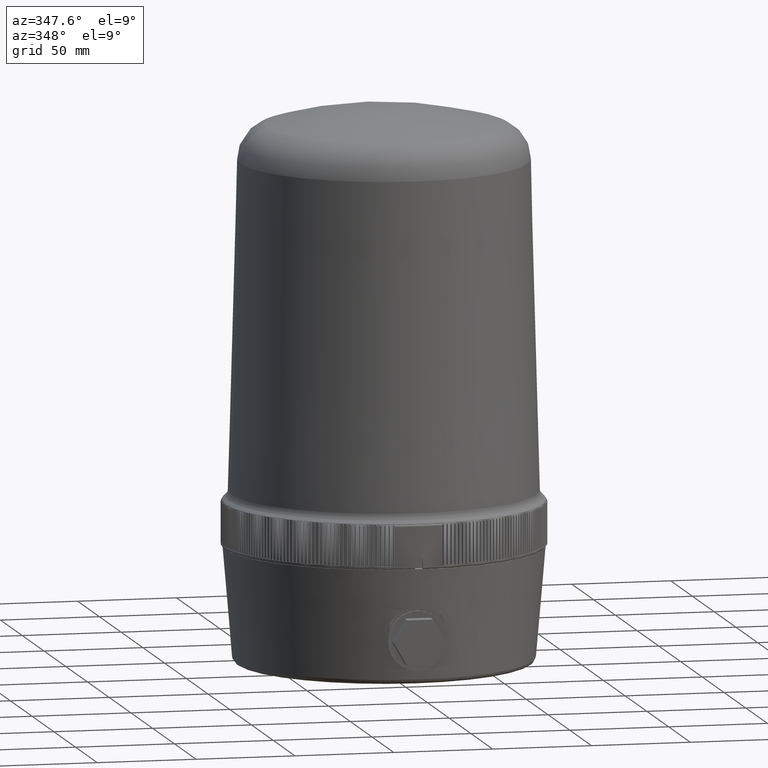
[diagram: clean part render]
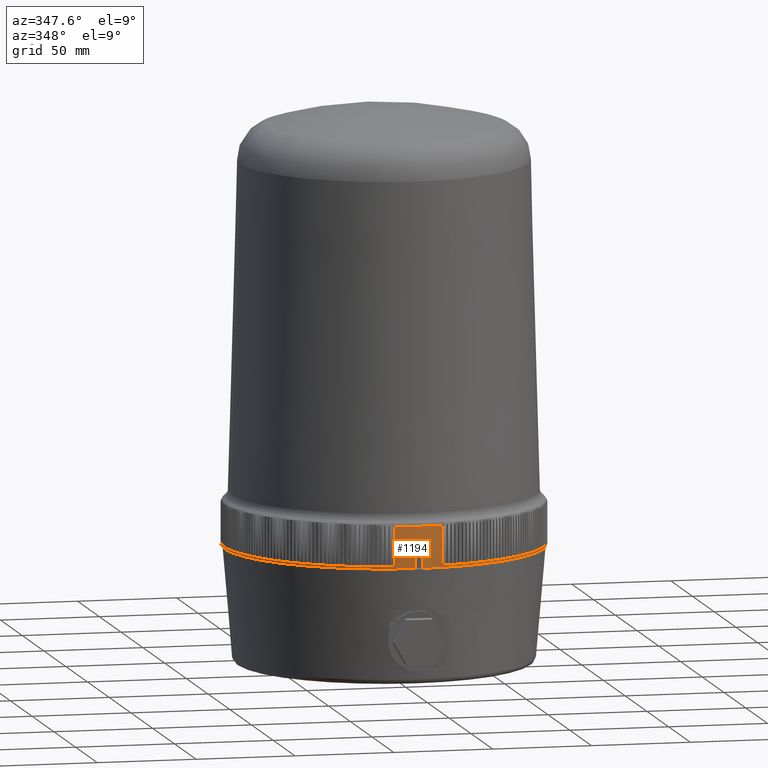
[diagram: same view with one face highlighted and labeled with its STEP entity id]
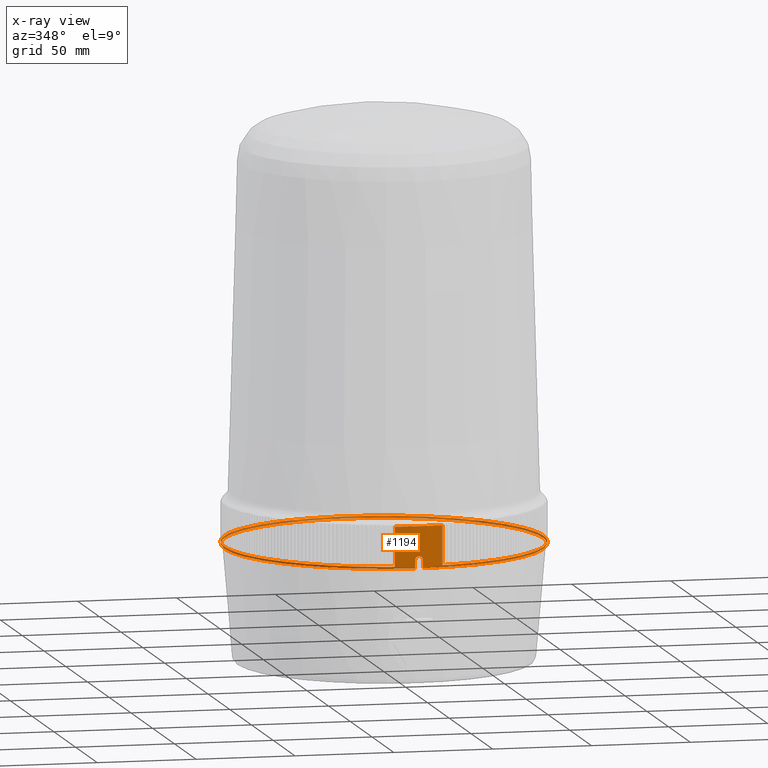
[diagram: x-ray of the same camera — body ghosted, the highlighted face saturated]
A machine part, auxiliary view. The second image highlights one B-rep face of the part: STEP entity #1194.
The next image is the same camera in x-ray: the body ghosted, the highlighted face saturated — about 23% of this face is hidden behind the body in this view.
In plain terms, the highlighted cylindrical surface (bore or boss wall) has radius 80.7 mm, axis along (0, 0, -1).
Its self-contained STEP definition (entity closure, byte-faithful):
#778=B_SPLINE_CURVE_WITH_KNOTS('',3,(#27745,#27746,#27747,#27748,#27749,
#27750,#27751,#27752,#27753,#27754,#27755,#27756,#27757,#27758,#27759,#27760,
#27761,#27762,#27763,#27764,#27765,#27766,#27767,#27768,#27769,#27770,#27771,
#27772,#27773,#27774),.UNSPECIFIED.,.F.,.F.,(4,2,2,2,2,2,2,2,2,2,2,2,2,2,
4),(0.,0.0625000000000005,0.125000000000001,0.187500000000001,0.250000000000002,
0.375000000000002,0.500000000000001,0.562500000000001,0.625000000000001,
0.687500000000001,0.750000000000001,0.812500000000001,0.875,0.9375,1.),.UNSPECIFIED.);
#1036=CYLINDRICAL_SURFACE('',#19166,80.7);
#1076=FACE_BOUND('',#4064,.T.);
#1077=FACE_BOUND('',#4065,.T.);
#1194=ADVANCED_FACE('',(#1076,#1077),#1036,.T.);
#4064=EDGE_LOOP('',(#9316,#9317,#9318,#9319,#9320,#9321,#9322,#9323,#9324,
#9325,#9326,#9327,#9328,#9329,#9330,#9331,#9332,#9333,#9334,#9335,#9336,
#9337,#9338,#9339,#9340,#9341,#9342,#9343,#9344,#9345,#9346,#9347,#9348,
#9349,#9350,#9351,#9352,#9353,#9354,#9355,#9356,#9357,#9358,#9359,#9360,
#9361,#9362,#9363,#9364,#9365,#9366,#9367,#9368,#9369,#9370,#9371,#9372,
#9373,#9374,#9375,#9376,#9377,#9378,#9379,#9380,#9381,#9382,#9383,#9384,
#9385,#9386,#9387,#9388,#9389,#9390,#9391,#9392,#9393,#9394,#9395,#9396,
#9397,#9398,#9399,#9400,#9401,#9402,#9403,#9404,#9405,#9406,#9407,#9408,
#9409,#9410,#9411,#9412,#9413,#9414,#9415,#9416,#9417,#9418,#9419,#9420,
#9421,#9422,#9423,#9424,#9425,#9426,#9427,#9428,#9429,#9430,#9431,#9432,
#9433,#9434,#9435,#9436,#9437,#9438,#9439,#9440,#9441,#9442,#9443,#9444,
#9445,#9446,#9447,#9448,#9449,#9450,#9451,#9452,#9453,#9454,#9455,#9456,
#9457,#9458,#9459,#9460,#9461,#9462,#9463,#9464,#9465,#9466,#9467,#9468,
#9469,#9470,#9471,#9472,#9473,#9474,#9475,#9476,#9477,#9478,#9479,#9480,
#9481,#9482,#9483,#9484,#9485,#9486,#9487,#9488,#9489,#9490,#9491,#9492,
#9493,#9494,#9495,#9496,#9497,#9498,#9499,#9500,#9501,#9502,#9503,#9504,
#9505,#9506,#9507,#9508,#9509,#9510,#9511,#9512,#9513,#9514,#9515,#9516,
#9517,#9518,#9519,#9520,#9521,#9522,#9523,#9524,#9525,#9526,#9527,#9528,
#9529,#9530,#9531,#9532,#9533,#9534,#9535,#9536,#9537,#9538,#9539,#9540,
#9541,#9542,#9543,#9544,#9545,#9546,#9547,#9548));
#4065=EDGE_LOOP('',(#9549,#9550,#9551,#9552));
#6125=LINE('',#27628,#7465);
#6126=LINE('',#27632,#7466);
#6127=LINE('',#27741,#7467);
#6128=LINE('',#27743,#7468);
#7465=VECTOR('',#22140,1.);
#7466=VECTOR('',#22143,1.);
#7467=VECTOR('',#22252,1.);
#7468=VECTOR('',#22253,1.);
#9316=ORIENTED_EDGE('',*,*,#16057,.T.);
#9317=ORIENTED_EDGE('',*,*,#16058,.T.);
#9318=ORIENTED_EDGE('',*,*,#16059,.T.);
#9319=ORIENTED_EDGE('',*,*,#16060,.T.);
#9320=ORIENTED_EDGE('',*,*,#16061,.T.);
#9321=ORIENTED_EDGE('',*,*,#16062,.T.);
#9322=ORIENTED_EDGE('',*,*,#16063,.T.);
#9323=ORIENTED_EDGE('',*,*,#16064,.T.);
#9324=ORIENTED_EDGE('',*,*,#16065,.T.);
#9325=ORIENTED_EDGE('',*,*,#16066,.T.);
#9326=ORIENTED_EDGE('',*,*,#16067,.T.);
#9327=ORIENTED_EDGE('',*,*,#16068,.T.);
#9328=ORIENTED_EDGE('',*,*,#16069,.T.);
#9329=ORIENTED_EDGE('',*,*,#16070,.T.);
#9330=ORIENTED_EDGE('',*,*,#16071,.T.);
#9331=ORIENTED_EDGE('',*,*,#16072,.T.);
#9332=ORIENTED_EDGE('',*,*,#16073,.T.);
#9333=ORIENTED_EDGE('',*,*,#16074,.T.);
#9334=ORIENTED_EDGE('',*,*,#16075,.T.);
#9335=ORIENTED_EDGE('',*,*,#16076,.T.);
#9336=ORIENTED_EDGE('',*,*,#16077,.T.);
#9337=ORIENTED_EDGE('',*,*,#16078,.T.);
#9338=ORIENTED_EDGE('',*,*,#16079,.T.);
#9339=ORIENTED_EDGE('',*,*,#16080,.T.);
#9340=ORIENTED_EDGE('',*,*,#16081,.T.);
#9341=ORIENTED_EDGE('',*,*,#16082,.T.);
#9342=ORIENTED_EDGE('',*,*,#16083,.T.);
#9343=ORIENTED_EDGE('',*,*,#16084,.T.);
#9344=ORIENTED_EDGE('',*,*,#16085,.T.);
#9345=ORIENTED_EDGE('',*,*,#16086,.T.);
#9346=ORIENTED_EDGE('',*,*,#16087,.T.);
#9347=ORIENTED_EDGE('',*,*,#16088,.T.);
#9348=ORIENTED_EDGE('',*,*,#16089,.T.);
#9349=ORIENTED_EDGE('',*,*,#16090,.T.);
#9350=ORIENTED_EDGE('',*,*,#16091,.T.);
#9351=ORIENTED_EDGE('',*,*,#16092,.T.);
#9352=ORIENTED_EDGE('',*,*,#16093,.T.);
#9353=ORIENTED_EDGE('',*,*,#16094,.T.);
#9354=ORIENTED_EDGE('',*,*,#16095,.T.);
#9355=ORIENTED_EDGE('',*,*,#16096,.T.);
#9356=ORIENTED_EDGE('',*,*,#16097,.T.);
#9357=ORIENTED_EDGE('',*,*,#16098,.T.);
#9358=ORIENTED_EDGE('',*,*,#16099,.T.);
#9359=ORIENTED_EDGE('',*,*,#16100,.T.);
#9360=ORIENTED_EDGE('',*,*,#16101,.T.);
#9361=ORIENTED_EDGE('',*,*,#16102,.T.);
#9362=ORIENTED_EDGE('',*,*,#16103,.T.);
#9363=ORIENTED_EDGE('',*,*,#16104,.T.);
#9364=ORIENTED_EDGE('',*,*,#16105,.T.);
#9365=ORIENTED_EDGE('',*,*,#16106,.T.);
#9366=ORIENTED_EDGE('',*,*,#16107,.T.);
#9367=ORIENTED_EDGE('',*,*,#16108,.T.);
#9368=ORIENTED_EDGE('',*,*,#16109,.T.);
#9369=ORIENTED_EDGE('',*,*,#16110,.T.);
#9370=ORIENTED_EDGE('',*,*,#16111,.T.);
#9371=ORIENTED_EDGE('',*,*,#16112,.T.);
#9372=ORIENTED_EDGE('',*,*,#16113,.T.);
#9373=ORIENTED_EDGE('',*,*,#16114,.T.);
#9374=ORIENTED_EDGE('',*,*,#16115,.T.);
#9375=ORIENTED_EDGE('',*,*,#16116,.T.);
#9376=ORIENTED_EDGE('',*,*,#16117,.T.);
#9377=ORIENTED_EDGE('',*,*,#16118,.T.);
#9378=ORIENTED_EDGE('',*,*,#16119,.T.);
#9379=ORIENTED_EDGE('',*,*,#16120,.T.);
#9380=ORIENTED_EDGE('',*,*,#16121,.T.);
#9381=ORIENTED_EDGE('',*,*,#16122,.T.);
#9382=ORIENTED_EDGE('',*,*,#16123,.T.);
#9383=ORIENTED_EDGE('',*,*,#16124,.T.);
#9384=ORIENTED_EDGE('',*,*,#16125,.T.);
#9385=ORIENTED_EDGE('',*,*,#16126,.T.);
#9386=ORIENTED_EDGE('',*,*,#16127,.T.);
#9387=ORIENTED_EDGE('',*,*,#16128,.T.);
#9388=ORIENTED_EDGE('',*,*,#16129,.T.);
#9389=ORIENTED_EDGE('',*,*,#16130,.T.);
#9390=ORIENTED_EDGE('',*,*,#16131,.T.);
#9391=ORIENTED_EDGE('',*,*,#16132,.T.);
#9392=ORIENTED_EDGE('',*,*,#16133,.T.);
#9393=ORIENTED_EDGE('',*,*,#16134,.T.);
#9394=ORIENTED_EDGE('',*,*,#16135,.T.);
#9395=ORIENTED_EDGE('',*,*,#16136,.T.);
#9396=ORIENTED_EDGE('',*,*,#16137,.T.);
#9397=ORIENTED_EDGE('',*,*,#16138,.T.);
#9398=ORIENTED_EDGE('',*,*,#16139,.T.);
#9399=ORIENTED_EDGE('',*,*,#16140,.T.);
#9400=ORIENTED_EDGE('',*,*,#16141,.T.);
#9401=ORIENTED_EDGE('',*,*,#16142,.T.);
#9402=ORIENTED_EDGE('',*,*,#16143,.T.);
#9403=ORIENTED_EDGE('',*,*,#16144,.T.);
#9404=ORIENTED_EDGE('',*,*,#16145,.T.);
#9405=ORIENTED_EDGE('',*,*,#16146,.T.);
#9406=ORIENTED_EDGE('',*,*,#16147,.T.);
#9407=ORIENTED_EDGE('',*,*,#16148,.T.);
#9408=ORIENTED_EDGE('',*,*,#16149,.T.);
#9409=ORIENTED_EDGE('',*,*,#16150,.T.);
#9410=ORIENTED_EDGE('',*,*,#16151,.T.);
#9411=ORIENTED_EDGE('',*,*,#16152,.T.);
#9412=ORIENTED_EDGE('',*,*,#16153,.T.);
#9413=ORIENTED_EDGE('',*,*,#16154,.T.);
#9414=ORIENTED_EDGE('',*,*,#16155,.T.);
#9415=ORIENTED_EDGE('',*,*,#16156,.T.);
#9416=ORIENTED_EDGE('',*,*,#16157,.T.);
#9417=ORIENTED_EDGE('',*,*,#16158,.T.);
#9418=ORIENTED_EDGE('',*,*,#16159,.T.);
#9419=ORIENTED_EDGE('',*,*,#16160,.T.);
#9420=ORIENTED_EDGE('',*,*,#16161,.T.);
#9421=ORIENTED_EDGE('',*,*,#16162,.T.);
#9422=ORIENTED_EDGE('',*,*,#16163,.T.);
#9423=ORIENTED_EDGE('',*,*,#16164,.T.);
#9424=ORIENTED_EDGE('',*,*,#16165,.T.);
#9425=ORIENTED_EDGE('',*,*,#16166,.T.);
#9426=ORIENTED_EDGE('',*,*,#16167,.T.);
#9427=ORIENTED_EDGE('',*,*,#16168,.T.);
#9428=ORIENTED_EDGE('',*,*,#16169,.T.);
#9429=ORIENTED_EDGE('',*,*,#16170,.T.);
#9430=ORIENTED_EDGE('',*,*,#16171,.T.);
#9431=ORIENTED_EDGE('',*,*,#16172,.T.);
#9432=ORIENTED_EDGE('',*,*,#16173,.T.);
#9433=ORIENTED_EDGE('',*,*,#16174,.T.);
#9434=ORIENTED_EDGE('',*,*,#16175,.T.);
#9435=ORIENTED_EDGE('',*,*,#16176,.T.);
#9436=ORIENTED_EDGE('',*,*,#16177,.T.);
#9437=ORIENTED_EDGE('',*,*,#16178,.T.);
#9438=ORIENTED_EDGE('',*,*,#16179,.T.);
#9439=ORIENTED_EDGE('',*,*,#16180,.T.);
#9440=ORIENTED_EDGE('',*,*,#16181,.T.);
#9441=ORIENTED_EDGE('',*,*,#16182,.T.);
#9442=ORIENTED_EDGE('',*,*,#16183,.T.);
#9443=ORIENTED_EDGE('',*,*,#16184,.T.);
#9444=ORIENTED_EDGE('',*,*,#16185,.T.);
#9445=ORIENTED_EDGE('',*,*,#16186,.T.);
#9446=ORIENTED_EDGE('',*,*,#16187,.T.);
#9447=ORIENTED_EDGE('',*,*,#16188,.T.);
#9448=ORIENTED_EDGE('',*,*,#16189,.T.);
#9449=ORIENTED_EDGE('',*,*,#16190,.T.);
#9450=ORIENTED_EDGE('',*,*,#16191,.T.);
#9451=ORIENTED_EDGE('',*,*,#16192,.T.);
#9452=ORIENTED_EDGE('',*,*,#16193,.T.);
#9453=ORIENTED_EDGE('',*,*,#16194,.T.);
#9454=ORIENTED_EDGE('',*,*,#16195,.T.);
#9455=ORIENTED_EDGE('',*,*,#16196,.T.);
#9456=ORIENTED_EDGE('',*,*,#16197,.T.);
#9457=ORIENTED_EDGE('',*,*,#16198,.T.);
#9458=ORIENTED_EDGE('',*,*,#16199,.T.);
#9459=ORIENTED_EDGE('',*,*,#16200,.T.);
#9460=ORIENTED_EDGE('',*,*,#16201,.T.);
#9461=ORIENTED_EDGE('',*,*,#16202,.T.);
#9462=ORIENTED_EDGE('',*,*,#16203,.T.);
#9463=ORIENTED_EDGE('',*,*,#16204,.T.);
#9464=ORIENTED_EDGE('',*,*,#16205,.T.);
#9465=ORIENTED_EDGE('',*,*,#16206,.T.);
#9466=ORIENTED_EDGE('',*,*,#16207,.T.);
#9467=ORIENTED_EDGE('',*,*,#16208,.T.);
#9468=ORIENTED_EDGE('',*,*,#16209,.T.);
#9469=ORIENTED_EDGE('',*,*,#16210,.T.);
#9470=ORIENTED_EDGE('',*,*,#16211,.T.);
#9471=ORIENTED_EDGE('',*,*,#16212,.T.);
#9472=ORIENTED_EDGE('',*,*,#16213,.T.);
#9473=ORIENTED_EDGE('',*,*,#16214,.T.);
#9474=ORIENTED_EDGE('',*,*,#16215,.T.);
#9475=ORIENTED_EDGE('',*,*,#16216,.T.);
#9476=ORIENTED_EDGE('',*,*,#16217,.T.);
#9477=ORIENTED_EDGE('',*,*,#16218,.T.);
#9478=ORIENTED_EDGE('',*,*,#16219,.T.);
#9479=ORIENTED_EDGE('',*,*,#16220,.T.);
#9480=ORIENTED_EDGE('',*,*,#16221,.T.);
#9481=ORIENTED_EDGE('',*,*,#16222,.T.);
#9482=ORIENTED_EDGE('',*,*,#16223,.T.);
#9483=ORIENTED_EDGE('',*,*,#16224,.T.);
#9484=ORIENTED_EDGE('',*,*,#16225,.T.);
#9485=ORIENTED_EDGE('',*,*,#16226,.T.);
#9486=ORIENTED_EDGE('',*,*,#16227,.T.);
#9487=ORIENTED_EDGE('',*,*,#16228,.T.);
#9488=ORIENTED_EDGE('',*,*,#16229,.T.);
#9489=ORIENTED_EDGE('',*,*,#16230,.T.);
#9490=ORIENTED_EDGE('',*,*,#16231,.T.);
#9491=ORIENTED_EDGE('',*,*,#16232,.T.);
#9492=ORIENTED_EDGE('',*,*,#16233,.T.);
#9493=ORIENTED_EDGE('',*,*,#16234,.T.);
#9494=ORIENTED_EDGE('',*,*,#16235,.F.);
#9495=ORIENTED_EDGE('',*,*,#16236,.T.);
#9496=ORIENTED_EDGE('',*,*,#16237,.T.);
#9497=ORIENTED_EDGE('',*,*,#16238,.T.);
#9498=ORIENTED_EDGE('',*,*,#16239,.T.);
#9499=ORIENTED_EDGE('',*,*,#16240,.T.);
#9500=ORIENTED_EDGE('',*,*,#16241,.T.);
#9501=ORIENTED_EDGE('',*,*,#16242,.T.);
#9502=ORIENTED_EDGE('',*,*,#16243,.T.);
#9503=ORIENTED_EDGE('',*,*,#16244,.T.);
#9504=ORIENTED_EDGE('',*,*,#16245,.T.);
#9505=ORIENTED_EDGE('',*,*,#16246,.T.);
#9506=ORIENTED_EDGE('',*,*,#16247,.T.);
#9507=ORIENTED_EDGE('',*,*,#16248,.T.);
#9508=ORIENTED_EDGE('',*,*,#16249,.T.);
#9509=ORIENTED_EDGE('',*,*,#16250,.T.);
#9510=ORIENTED_EDGE('',*,*,#16251,.T.);
#9511=ORIENTED_EDGE('',*,*,#16252,.T.);
#9512=ORIENTED_EDGE('',*,*,#16253,.T.);
#9513=ORIENTED_EDGE('',*,*,#16254,.T.);
#9514=ORIENTED_EDGE('',*,*,#16255,.T.);
#9515=ORIENTED_EDGE('',*,*,#16256,.T.);
#9516=ORIENTED_EDGE('',*,*,#16257,.T.);
#9517=ORIENTED_EDGE('',*,*,#16258,.T.);
#9518=ORIENTED_EDGE('',*,*,#16259,.T.);
#9519=ORIENTED_EDGE('',*,*,#16260,.T.);
#9520=ORIENTED_EDGE('',*,*,#16261,.T.);
#9521=ORIENTED_EDGE('',*,*,#16262,.T.);
#9522=ORIENTED_EDGE('',*,*,#16263,.T.);
#9523=ORIENTED_EDGE('',*,*,#16264,.T.);
#9524=ORIENTED_EDGE('',*,*,#16265,.T.);
#9525=ORIENTED_EDGE('',*,*,#16266,.T.);
#9526=ORIENTED_EDGE('',*,*,#16267,.T.);
#9527=ORIENTED_EDGE('',*,*,#16268,.T.);
#9528=ORIENTED_EDGE('',*,*,#16269,.T.);
#9529=ORIENTED_EDGE('',*,*,#16270,.T.);
#9530=ORIENTED_EDGE('',*,*,#16271,.T.);
#9531=ORIENTED_EDGE('',*,*,#16272,.T.);
#9532=ORIENTED_EDGE('',*,*,#16273,.T.);
#9533=ORIENTED_EDGE('',*,*,#16274,.T.);
#9534=ORIENTED_EDGE('',*,*,#16275,.T.);
#9535=ORIENTED_EDGE('',*,*,#16276,.T.);
#9536=ORIENTED_EDGE('',*,*,#16277,.T.);
#9537=ORIENTED_EDGE('',*,*,#16278,.T.);
#9538=ORIENTED_EDGE('',*,*,#16279,.T.);
#9539=ORIENTED_EDGE('',*,*,#16280,.T.);
#9540=ORIENTED_EDGE('',*,*,#16281,.T.);
#9541=ORIENTED_EDGE('',*,*,#16282,.T.);
#9542=ORIENTED_EDGE('',*,*,#16283,.T.);
#9543=ORIENTED_EDGE('',*,*,#16284,.T.);
#9544=ORIENTED_EDGE('',*,*,#16285,.T.);
#9545=ORIENTED_EDGE('',*,*,#16286,.T.);
#9546=ORIENTED_EDGE('',*,*,#16287,.T.);
#9547=ORIENTED_EDGE('',*,*,#16288,.T.);
#9548=ORIENTED_EDGE('',*,*,#16289,.T.);
#9549=ORIENTED_EDGE('',*,*,#16290,.T.);
#9550=ORIENTED_EDGE('',*,*,#16053,.F.);
#9551=ORIENTED_EDGE('',*,*,#16291,.T.);
#9552=ORIENTED_EDGE('',*,*,#16292,.T.);
#14452=VERTEX_POINT('',#27267);
#14453=VERTEX_POINT('',#27268);
#14456=VERTEX_POINT('',#27276);
#14457=VERTEX_POINT('',#27277);
#14458=VERTEX_POINT('',#27279);
#14459=VERTEX_POINT('',#27281);
#14460=VERTEX_POINT('',#27283);
#14461=VERTEX_POINT('',#27285);
#14462=VERTEX_POINT('',#27287);
#14463=VERTEX_POINT('',#27289);
#14464=VERTEX_POINT('',#27291);
#14465=VERTEX_POINT('',#27293);
#14466=VERTEX_POINT('',#27295);
#14467=VERTEX_POINT('',#27297);
#14468=VERTEX_POINT('',#27299);
#14469=VERTEX_POINT('',#27301);
#14470=VERTEX_POINT('',#27303);
#14471=VERTEX_POINT('',#27305);
#14472=VERTEX_POINT('',#27307);
#14473=VERTEX_POINT('',#27309);
#14474=VERTEX_POINT('',#27311);
#14475=VERTEX_POINT('',#27313);
#14476=VERTEX_POINT('',#27315);
#14477=VERTEX_POINT('',#27317);
#14478=VERTEX_POINT('',#27319);
#14479=VERTEX_POINT('',#27321);
#14480=VERTEX_POINT('',#27323);
#14481=VERTEX_POINT('',#27325);
#14482=VERTEX_POINT('',#27327);
#14483=VERTEX_POINT('',#27329);
#14484=VERTEX_POINT('',#27331);
#14485=VERTEX_POINT('',#27333);
#14486=VERTEX_POINT('',#27335);
#14487=VERTEX_POINT('',#27337);
#14488=VERTEX_POINT('',#27339);
#14489=VERTEX_POINT('',#27341);
#14490=VERTEX_POINT('',#27343);
#14491=VERTEX_POINT('',#27345);
#14492=VERTEX_POINT('',#27347);
#14493=VERTEX_POINT('',#27349);
#14494=VERTEX_POINT('',#27351);
#14495=VERTEX_POINT('',#27353);
#14496=VERTEX_POINT('',#27355);
#14497=VERTEX_POINT('',#27357);
#14498=VERTEX_POINT('',#27359);
#14499=VERTEX_POINT('',#27361);
#14500=VERTEX_POINT('',#27363);
#14501=VERTEX_POINT('',#27365);
#14502=VERTEX_POINT('',#27367);
#14503=VERTEX_POINT('',#27369);
#14504=VERTEX_POINT('',#27371);
#14505=VERTEX_POINT('',#27373);
#14506=VERTEX_POINT('',#27375);
#14507=VERTEX_POINT('',#27377);
#14508=VERTEX_POINT('',#27379);
#14509=VERTEX_POINT('',#27381);
#14510=VERTEX_POINT('',#27383);
#14511=VERTEX_POINT('',#27385);
#14512=VERTEX_POINT('',#27387);
#14513=VERTEX_POINT('',#27389);
#14514=VERTEX_POINT('',#27391);
#14515=VERTEX_POINT('',#27393);
#14516=VERTEX_POINT('',#27395);
#14517=VERTEX_POINT('',#27397);
#14518=VERTEX_POINT('',#27399);
#14519=VERTEX_POINT('',#27401);
#14520=VERTEX_POINT('',#27403);
#14521=VERTEX_POINT('',#27405);
#14522=VERTEX_POINT('',#27407);
#14523=VERTEX_POINT('',#27409);
#14524=VERTEX_POINT('',#27411);
#14525=VERTEX_POINT('',#27413);
#14526=VERTEX_POINT('',#27415);
#14527=VERTEX_POINT('',#27417);
#14528=VERTEX_POINT('',#27419);
#14529=VERTEX_POINT('',#27421);
#14530=VERTEX_POINT('',#27423);
#14531=VERTEX_POINT('',#27425);
#14532=VERTEX_POINT('',#27427);
#14533=VERTEX_POINT('',#27429);
#14534=VERTEX_POINT('',#27431);
#14535=VERTEX_POINT('',#27433);
#14536=VERTEX_POINT('',#27435);
#14537=VERTEX_POINT('',#27437);
#14538=VERTEX_POINT('',#27439);
#14539=VERTEX_POINT('',#27441);
#14540=VERTEX_POINT('',#27443);
#14541=VERTEX_POINT('',#27445);
#14542=VERTEX_POINT('',#27447);
#14543=VERTEX_POINT('',#27449);
#14544=VERTEX_POINT('',#27451);
#14545=VERTEX_POINT('',#27453);
#14546=VERTEX_POINT('',#27455);
#14547=VERTEX_POINT('',#27457);
#14548=VERTEX_POINT('',#27459);
#14549=VERTEX_POINT('',#27461);
#14550=VERTEX_POINT('',#27463);
#14551=VERTEX_POINT('',#27465);
#14552=VERTEX_POINT('',#27467);
#14553=VERTEX_POINT('',#27469);
#14554=VERTEX_POINT('',#27471);
#14555=VERTEX_POINT('',#27473);
#14556=VERTEX_POINT('',#27475);
#14557=VERTEX_POINT('',#27477);
#14558=VERTEX_POINT('',#27479);
#14559=VERTEX_POINT('',#27481);
#14560=VERTEX_POINT('',#27483);
#14561=VERTEX_POINT('',#27485);
#14562=VERTEX_POINT('',#27487);
#14563=VERTEX_POINT('',#27489);
#14564=VERTEX_POINT('',#27491);
#14565=VERTEX_POINT('',#27493);
#14566=VERTEX_POINT('',#27495);
#14567=VERTEX_POINT('',#27497);
#14568=VERTEX_POINT('',#27499);
#14569=VERTEX_POINT('',#27501);
#14570=VERTEX_POINT('',#27503);
#14571=VERTEX_POINT('',#27505);
#14572=VERTEX_POINT('',#27507);
#14573=VERTEX_POINT('',#27509);
#14574=VERTEX_POINT('',#27511);
#14575=VERTEX_POINT('',#27513);
#14576=VERTEX_POINT('',#27515);
#14577=VERTEX_POINT('',#27517);
#14578=VERTEX_POINT('',#27519);
#14579=VERTEX_POINT('',#27521);
#14580=VERTEX_POINT('',#27523);
#14581=VERTEX_POINT('',#27525);
#14582=VERTEX_POINT('',#27527);
#14583=VERTEX_POINT('',#27529);
#14584=VERTEX_POINT('',#27531);
#14585=VERTEX_POINT('',#27533);
#14586=VERTEX_POINT('',#27535);
#14587=VERTEX_POINT('',#27537);
#14588=VERTEX_POINT('',#27539);
#14589=VERTEX_POINT('',#27541);
#14590=VERTEX_POINT('',#27543);
#14591=VERTEX_POINT('',#27545);
#14592=VERTEX_POINT('',#27547);
#14593=VERTEX_POINT('',#27549);
#14594=VERTEX_POINT('',#27551);
#14595=VERTEX_POINT('',#27553);
#14596=VERTEX_POINT('',#27555);
#14597=VERTEX_POINT('',#27557);
#14598=VERTEX_POINT('',#27559);
#14599=VERTEX_POINT('',#27561);
#14600=VERTEX_POINT('',#27563);
#14601=VERTEX_POINT('',#27565);
#14602=VERTEX_POINT('',#27567);
#14603=VERTEX_POINT('',#27569);
#14604=VERTEX_POINT('',#27571);
#14605=VERTEX_POINT('',#27573);
#14606=VERTEX_POINT('',#27575);
#14607=VERTEX_POINT('',#27577);
#14608=VERTEX_POINT('',#27579);
#14609=VERTEX_POINT('',#27581);
#14610=VERTEX_POINT('',#27583);
#14611=VERTEX_POINT('',#27585);
#14612=VERTEX_POINT('',#27587);
#14613=VERTEX_POINT('',#27589);
#14614=VERTEX_POINT('',#27591);
#14615=VERTEX_POINT('',#27593);
#14616=VERTEX_POINT('',#27595);
#14617=VERTEX_POINT('',#27597);
#14618=VERTEX_POINT('',#27599);
#14619=VERTEX_POINT('',#27601);
#14620=VERTEX_POINT('',#27603);
#14621=VERTEX_POINT('',#27605);
#14622=VERTEX_POINT('',#27607);
#14623=VERTEX_POINT('',#27609);
#14624=VERTEX_POINT('',#27611);
#14625=VERTEX_POINT('',#27613);
#14626=VERTEX_POINT('',#27615);
#14627=VERTEX_POINT('',#27617);
#14628=VERTEX_POINT('',#27619);
#14629=VERTEX_POINT('',#27621);
#14630=VERTEX_POINT('',#27623);
#14631=VERTEX_POINT('',#27625);
#14632=VERTEX_POINT('',#27627);
#14633=VERTEX_POINT('',#27629);
#14634=VERTEX_POINT('',#27631);
#14635=VERTEX_POINT('',#27633);
#14636=VERTEX_POINT('',#27635);
#14637=VERTEX_POINT('',#27637);
#14638=VERTEX_POINT('',#27639);
#14639=VERTEX_POINT('',#27641);
#14640=VERTEX_POINT('',#27643);
#14641=VERTEX_POINT('',#27645);
#14642=VERTEX_POINT('',#27647);
#14643=VERTEX_POINT('',#27649);
#14644=VERTEX_POINT('',#27651);
#14645=VERTEX_POINT('',#27653);
#14646=VERTEX_POINT('',#27655);
#14647=VERTEX_POINT('',#27657);
#14648=VERTEX_POINT('',#27659);
#14649=VERTEX_POINT('',#27661);
#14650=VERTEX_POINT('',#27663);
#14651=VERTEX_POINT('',#27665);
#14652=VERTEX_POINT('',#27667);
#14653=VERTEX_POINT('',#27669);
#14654=VERTEX_POINT('',#27671);
#14655=VERTEX_POINT('',#27673);
#14656=VERTEX_POINT('',#27675);
#14657=VERTEX_POINT('',#27677);
#14658=VERTEX_POINT('',#27679);
#14659=VERTEX_POINT('',#27681);
#14660=VERTEX_POINT('',#27683);
#14661=VERTEX_POINT('',#27685);
#14662=VERTEX_POINT('',#27687);
#14663=VERTEX_POINT('',#27689);
#14664=VERTEX_POINT('',#27691);
#14665=VERTEX_POINT('',#27693);
#14666=VERTEX_POINT('',#27695);
#14667=VERTEX_POINT('',#27697);
#14668=VERTEX_POINT('',#27699);
#14669=VERTEX_POINT('',#27701);
#14670=VERTEX_POINT('',#27703);
#14671=VERTEX_POINT('',#27705);
#14672=VERTEX_POINT('',#27707);
#14673=VERTEX_POINT('',#27709);
#14674=VERTEX_POINT('',#27711);
#14675=VERTEX_POINT('',#27713);
#14676=VERTEX_POINT('',#27715);
#14677=VERTEX_POINT('',#27717);
#14678=VERTEX_POINT('',#27719);
#14679=VERTEX_POINT('',#27721);
#14680=VERTEX_POINT('',#27723);
#14681=VERTEX_POINT('',#27725);
#14682=VERTEX_POINT('',#27727);
#14683=VERTEX_POINT('',#27729);
#14684=VERTEX_POINT('',#27731);
#14685=VERTEX_POINT('',#27733);
#14686=VERTEX_POINT('',#27735);
#14687=VERTEX_POINT('',#27737);
#14688=VERTEX_POINT('',#27739);
#14689=VERTEX_POINT('',#27742);
#14690=VERTEX_POINT('',#27744);
#16053=EDGE_CURVE('',#14452,#14453,#18135,.T.);
#16057=EDGE_CURVE('',#14456,#14457,#18137,.T.);
#16058=EDGE_CURVE('',#14457,#14458,#18138,.T.);
#16059=EDGE_CURVE('',#14458,#14459,#18139,.T.);
#16060=EDGE_CURVE('',#14459,#14460,#18140,.T.);
#16061=EDGE_CURVE('',#14460,#14461,#18141,.T.);
#16062=EDGE_CURVE('',#14461,#14462,#18142,.T.);
#16063=EDGE_CURVE('',#14462,#14463,#18143,.T.);
#16064=EDGE_CURVE('',#14463,#14464,#18144,.T.);
#16065=EDGE_CURVE('',#14464,#14465,#18145,.T.);
#16066=EDGE_CURVE('',#14465,#14466,#18146,.T.);
#16067=EDGE_CURVE('',#14466,#14467,#18147,.T.);
#16068=EDGE_CURVE('',#14467,#14468,#18148,.T.);
#16069=EDGE_CURVE('',#14468,#14469,#18149,.T.);
#16070=EDGE_CURVE('',#14469,#14470,#18150,.T.);
#16071=EDGE_CURVE('',#14470,#14471,#18151,.T.);
#16072=EDGE_CURVE('',#14471,#14472,#18152,.T.);
#16073=EDGE_CURVE('',#14472,#14473,#18153,.T.);
#16074=EDGE_CURVE('',#14473,#14474,#18154,.T.);
#16075=EDGE_CURVE('',#14474,#14475,#18155,.T.);
#16076=EDGE_CURVE('',#14475,#14476,#18156,.T.);
#16077=EDGE_CURVE('',#14476,#14477,#18157,.T.);
#16078=EDGE_CURVE('',#14477,#14478,#18158,.T.);
#16079=EDGE_CURVE('',#14478,#14479,#18159,.T.);
#16080=EDGE_CURVE('',#14479,#14480,#18160,.T.);
#16081=EDGE_CURVE('',#14480,#14481,#18161,.T.);
#16082=EDGE_CURVE('',#14481,#14482,#18162,.T.);
#16083=EDGE_CURVE('',#14482,#14483,#18163,.T.);
#16084=EDGE_CURVE('',#14483,#14484,#18164,.T.);
#16085=EDGE_CURVE('',#14484,#14485,#18165,.T.);
#16086=EDGE_CURVE('',#14485,#14486,#18166,.T.);
#16087=EDGE_CURVE('',#14486,#14487,#18167,.T.);
#16088=EDGE_CURVE('',#14487,#14488,#18168,.T.);
#16089=EDGE_CURVE('',#14488,#14489,#18169,.T.);
#16090=EDGE_CURVE('',#14489,#14490,#18170,.T.);
#16091=EDGE_CURVE('',#14490,#14491,#18171,.T.);
#16092=EDGE_CURVE('',#14491,#14492,#18172,.T.);
#16093=EDGE_CURVE('',#14492,#14493,#18173,.T.);
#16094=EDGE_CURVE('',#14493,#14494,#18174,.T.);
#16095=EDGE_CURVE('',#14494,#14495,#18175,.T.);
#16096=EDGE_CURVE('',#14495,#14496,#18176,.T.);
#16097=EDGE_CURVE('',#14496,#14497,#18177,.T.);
#16098=EDGE_CURVE('',#14497,#14498,#18178,.T.);
#16099=EDGE_CURVE('',#14498,#14499,#18179,.T.);
#16100=EDGE_CURVE('',#14499,#14500,#18180,.T.);
#16101=EDGE_CURVE('',#14500,#14501,#18181,.T.);
#16102=EDGE_CURVE('',#14501,#14502,#18182,.T.);
#16103=EDGE_CURVE('',#14502,#14503,#18183,.T.);
#16104=EDGE_CURVE('',#14503,#14504,#18184,.T.);
#16105=EDGE_CURVE('',#14504,#14505,#18185,.T.);
#16106=EDGE_CURVE('',#14505,#14506,#18186,.T.);
#16107=EDGE_CURVE('',#14506,#14507,#18187,.T.);
#16108=EDGE_CURVE('',#14507,#14508,#18188,.T.);
#16109=EDGE_CURVE('',#14508,#14509,#18189,.T.);
#16110=EDGE_CURVE('',#14509,#14510,#18190,.T.);
#16111=EDGE_CURVE('',#14510,#14511,#18191,.T.);
#16112=EDGE_CURVE('',#14511,#14512,#18192,.T.);
#16113=EDGE_CURVE('',#14512,#14513,#18193,.T.);
#16114=EDGE_CURVE('',#14513,#14514,#18194,.T.);
#16115=EDGE_CURVE('',#14514,#14515,#18195,.T.);
#16116=EDGE_CURVE('',#14515,#14516,#18196,.T.);
#16117=EDGE_CURVE('',#14516,#14517,#18197,.T.);
#16118=EDGE_CURVE('',#14517,#14518,#18198,.T.);
#16119=EDGE_CURVE('',#14518,#14519,#18199,.T.);
#16120=EDGE_CURVE('',#14519,#14520,#18200,.T.);
#16121=EDGE_CURVE('',#14520,#14521,#18201,.T.);
#16122=EDGE_CURVE('',#14521,#14522,#18202,.T.);
#16123=EDGE_CURVE('',#14522,#14523,#18203,.T.);
#16124=EDGE_CURVE('',#14523,#14524,#18204,.T.);
#16125=EDGE_CURVE('',#14524,#14525,#18205,.T.);
#16126=EDGE_CURVE('',#14525,#14526,#18206,.T.);
#16127=EDGE_CURVE('',#14526,#14527,#18207,.T.);
#16128=EDGE_CURVE('',#14527,#14528,#18208,.T.);
#16129=EDGE_CURVE('',#14528,#14529,#18209,.T.);
#16130=EDGE_CURVE('',#14529,#14530,#18210,.T.);
#16131=EDGE_CURVE('',#14530,#14531,#18211,.T.);
#16132=EDGE_CURVE('',#14531,#14532,#18212,.T.);
#16133=EDGE_CURVE('',#14532,#14533,#18213,.T.);
#16134=EDGE_CURVE('',#14533,#14534,#18214,.T.);
#16135=EDGE_CURVE('',#14534,#14535,#18215,.T.);
#16136=EDGE_CURVE('',#14535,#14536,#18216,.T.);
#16137=EDGE_CURVE('',#14536,#14537,#18217,.T.);
#16138=EDGE_CURVE('',#14537,#14538,#18218,.T.);
#16139=EDGE_CURVE('',#14538,#14539,#18219,.T.);
#16140=EDGE_CURVE('',#14539,#14540,#18220,.T.);
#16141=EDGE_CURVE('',#14540,#14541,#18221,.T.);
#16142=EDGE_CURVE('',#14541,#14542,#18222,.T.);
#16143=EDGE_CURVE('',#14542,#14543,#18223,.T.);
#16144=EDGE_CURVE('',#14543,#14544,#18224,.T.);
#16145=EDGE_CURVE('',#14544,#14545,#18225,.T.);
#16146=EDGE_CURVE('',#14545,#14546,#18226,.T.);
#16147=EDGE_CURVE('',#14546,#14547,#18227,.T.);
#16148=EDGE_CURVE('',#14547,#14548,#18228,.T.);
#16149=EDGE_CURVE('',#14548,#14549,#18229,.T.);
#16150=EDGE_CURVE('',#14549,#14550,#18230,.T.);
#16151=EDGE_CURVE('',#14550,#14551,#18231,.T.);
#16152=EDGE_CURVE('',#14551,#14552,#18232,.T.);
#16153=EDGE_CURVE('',#14552,#14553,#18233,.T.);
#16154=EDGE_CURVE('',#14553,#14554,#18234,.T.);
#16155=EDGE_CURVE('',#14554,#14555,#18235,.T.);
#16156=EDGE_CURVE('',#14555,#14556,#18236,.T.);
#16157=EDGE_CURVE('',#14556,#14557,#18237,.T.);
#16158=EDGE_CURVE('',#14557,#14558,#18238,.T.);
#16159=EDGE_CURVE('',#14558,#14559,#18239,.T.);
#16160=EDGE_CURVE('',#14559,#14560,#18240,.T.);
#16161=EDGE_CURVE('',#14560,#14561,#18241,.T.);
#16162=EDGE_CURVE('',#14561,#14562,#18242,.T.);
#16163=EDGE_CURVE('',#14562,#14563,#18243,.T.);
#16164=EDGE_CURVE('',#14563,#14564,#18244,.T.);
#16165=EDGE_CURVE('',#14564,#14565,#18245,.T.);
#16166=EDGE_CURVE('',#14565,#14566,#18246,.T.);
#16167=EDGE_CURVE('',#14566,#14567,#18247,.T.);
#16168=EDGE_CURVE('',#14567,#14568,#18248,.T.);
#16169=EDGE_CURVE('',#14568,#14569,#18249,.T.);
#16170=EDGE_CURVE('',#14569,#14570,#18250,.T.);
#16171=EDGE_CURVE('',#14570,#14571,#18251,.T.);
#16172=EDGE_CURVE('',#14571,#14572,#18252,.T.);
#16173=EDGE_CURVE('',#14572,#14573,#18253,.T.);
#16174=EDGE_CURVE('',#14573,#14574,#18254,.T.);
#16175=EDGE_CURVE('',#14574,#14575,#18255,.T.);
#16176=EDGE_CURVE('',#14575,#14576,#18256,.T.);
#16177=EDGE_CURVE('',#14576,#14577,#18257,.T.);
#16178=EDGE_CURVE('',#14577,#14578,#18258,.T.);
#16179=EDGE_CURVE('',#14578,#14579,#18259,.T.);
#16180=EDGE_CURVE('',#14579,#14580,#18260,.T.);
#16181=EDGE_CURVE('',#14580,#14581,#18261,.T.);
#16182=EDGE_CURVE('',#14581,#14582,#18262,.T.);
#16183=EDGE_CURVE('',#14582,#14583,#18263,.T.);
#16184=EDGE_CURVE('',#14583,#14584,#18264,.T.);
#16185=EDGE_CURVE('',#14584,#14585,#18265,.T.);
#16186=EDGE_CURVE('',#14585,#14586,#18266,.T.);
#16187=EDGE_CURVE('',#14586,#14587,#18267,.T.);
#16188=EDGE_CURVE('',#14587,#14588,#18268,.T.);
#16189=EDGE_CURVE('',#14588,#14589,#18269,.T.);
#16190=EDGE_CURVE('',#14589,#14590,#18270,.T.);
#16191=EDGE_CURVE('',#14590,#14591,#18271,.T.);
#16192=EDGE_CURVE('',#14591,#14592,#18272,.T.);
#16193=EDGE_CURVE('',#14592,#14593,#18273,.T.);
#16194=EDGE_CURVE('',#14593,#14594,#18274,.T.);
#16195=EDGE_CURVE('',#14594,#14595,#18275,.T.);
#16196=EDGE_CURVE('',#14595,#14596,#18276,.T.);
#16197=EDGE_CURVE('',#14596,#14597,#18277,.T.);
#16198=EDGE_CURVE('',#14597,#14598,#18278,.T.);
#16199=EDGE_CURVE('',#14598,#14599,#18279,.T.);
#16200=EDGE_CURVE('',#14599,#14600,#18280,.T.);
#16201=EDGE_CURVE('',#14600,#14601,#18281,.T.);
#16202=EDGE_CURVE('',#14601,#14602,#18282,.T.);
#16203=EDGE_CURVE('',#14602,#14603,#18283,.T.);
#16204=EDGE_CURVE('',#14603,#14604,#18284,.T.);
#16205=EDGE_CURVE('',#14604,#14605,#18285,.T.);
#16206=EDGE_CURVE('',#14605,#14606,#18286,.T.);
#16207=EDGE_CURVE('',#14606,#14607,#18287,.T.);
#16208=EDGE_CURVE('',#14607,#14608,#18288,.T.);
#16209=EDGE_CURVE('',#14608,#14609,#18289,.T.);
#16210=EDGE_CURVE('',#14609,#14610,#18290,.T.);
#16211=EDGE_CURVE('',#14610,#14611,#18291,.T.);
#16212=EDGE_CURVE('',#14611,#14612,#18292,.T.);
#16213=EDGE_CURVE('',#14612,#14613,#18293,.T.);
#16214=EDGE_CURVE('',#14613,#14614,#18294,.T.);
#16215=EDGE_CURVE('',#14614,#14615,#18295,.T.);
#16216=EDGE_CURVE('',#14615,#14616,#18296,.T.);
#16217=EDGE_CURVE('',#14616,#14617,#18297,.T.);
#16218=EDGE_CURVE('',#14617,#14618,#18298,.T.);
#16219=EDGE_CURVE('',#14618,#14619,#18299,.T.);
#16220=EDGE_CURVE('',#14619,#14620,#18300,.T.);
#16221=EDGE_CURVE('',#14620,#14621,#18301,.T.);
#16222=EDGE_CURVE('',#14621,#14622,#18302,.T.);
#16223=EDGE_CURVE('',#14622,#14623,#18303,.T.);
#16224=EDGE_CURVE('',#14623,#14624,#18304,.T.);
#16225=EDGE_CURVE('',#14624,#14625,#18305,.T.);
#16226=EDGE_CURVE('',#14625,#14626,#18306,.T.);
#16227=EDGE_CURVE('',#14626,#14627,#18307,.T.);
#16228=EDGE_CURVE('',#14627,#14628,#18308,.T.);
#16229=EDGE_CURVE('',#14628,#14629,#18309,.T.);
#16230=EDGE_CURVE('',#14629,#14630,#18310,.T.);
#16231=EDGE_CURVE('',#14630,#14631,#18311,.T.);
#16232=EDGE_CURVE('',#14631,#14632,#18312,.T.);
#16233=EDGE_CURVE('',#14632,#14633,#6125,.T.);
#16234=EDGE_CURVE('',#14633,#14634,#18313,.T.);
#16235=EDGE_CURVE('',#14635,#14634,#6126,.T.);
#16236=EDGE_CURVE('',#14635,#14636,#18314,.T.);
#16237=EDGE_CURVE('',#14636,#14637,#18315,.T.);
#16238=EDGE_CURVE('',#14637,#14638,#18316,.T.);
#16239=EDGE_CURVE('',#14638,#14639,#18317,.T.);
#16240=EDGE_CURVE('',#14639,#14640,#18318,.T.);
#16241=EDGE_CURVE('',#14640,#14641,#18319,.T.);
#16242=EDGE_CURVE('',#14641,#14642,#18320,.T.);
#16243=EDGE_CURVE('',#14642,#14643,#18321,.T.);
#16244=EDGE_CURVE('',#14643,#14644,#18322,.T.);
#16245=EDGE_CURVE('',#14644,#14645,#18323,.T.);
#16246=EDGE_CURVE('',#14645,#14646,#18324,.T.);
#16247=EDGE_CURVE('',#14646,#14647,#18325,.T.);
#16248=EDGE_CURVE('',#14647,#14648,#18326,.T.);
#16249=EDGE_CURVE('',#14648,#14649,#18327,.T.);
#16250=EDGE_CURVE('',#14649,#14650,#18328,.T.);
#16251=EDGE_CURVE('',#14650,#14651,#18329,.T.);
#16252=EDGE_CURVE('',#14651,#14652,#18330,.T.);
#16253=EDGE_CURVE('',#14652,#14653,#18331,.T.);
#16254=EDGE_CURVE('',#14653,#14654,#18332,.T.);
#16255=EDGE_CURVE('',#14654,#14655,#18333,.T.);
#16256=EDGE_CURVE('',#14655,#14656,#18334,.T.);
#16257=EDGE_CURVE('',#14656,#14657,#18335,.T.);
#16258=EDGE_CURVE('',#14657,#14658,#18336,.T.);
#16259=EDGE_CURVE('',#14658,#14659,#18337,.T.);
#16260=EDGE_CURVE('',#14659,#14660,#18338,.T.);
#16261=EDGE_CURVE('',#14660,#14661,#18339,.T.);
#16262=EDGE_CURVE('',#14661,#14662,#18340,.T.);
#16263=EDGE_CURVE('',#14662,#14663,#18341,.T.);
#16264=EDGE_CURVE('',#14663,#14664,#18342,.T.);
#16265=EDGE_CURVE('',#14664,#14665,#18343,.T.);
#16266=EDGE_CURVE('',#14665,#14666,#18344,.T.);
#16267=EDGE_CURVE('',#14666,#14667,#18345,.T.);
#16268=EDGE_CURVE('',#14667,#14668,#18346,.T.);
#16269=EDGE_CURVE('',#14668,#14669,#18347,.T.);
#16270=EDGE_CURVE('',#14669,#14670,#18348,.T.);
#16271=EDGE_CURVE('',#14670,#14671,#18349,.T.);
#16272=EDGE_CURVE('',#14671,#14672,#18350,.T.);
#16273=EDGE_CURVE('',#14672,#14673,#18351,.T.);
#16274=EDGE_CURVE('',#14673,#14674,#18352,.T.);
#16275=EDGE_CURVE('',#14674,#14675,#18353,.T.);
#16276=EDGE_CURVE('',#14675,#14676,#18354,.T.);
#16277=EDGE_CURVE('',#14676,#14677,#18355,.T.);
#16278=EDGE_CURVE('',#14677,#14678,#18356,.T.);
#16279=EDGE_CURVE('',#14678,#14679,#18357,.T.);
#16280=EDGE_CURVE('',#14679,#14680,#18358,.T.);
#16281=EDGE_CURVE('',#14680,#14681,#18359,.T.);
#16282=EDGE_CURVE('',#14681,#14682,#18360,.T.);
#16283=EDGE_CURVE('',#14682,#14683,#18361,.T.);
#16284=EDGE_CURVE('',#14683,#14684,#18362,.T.);
#16285=EDGE_CURVE('',#14684,#14685,#18363,.T.);
#16286=EDGE_CURVE('',#14685,#14686,#18364,.T.);
#16287=EDGE_CURVE('',#14686,#14687,#18365,.T.);
#16288=EDGE_CURVE('',#14687,#14688,#18366,.T.);
#16289=EDGE_CURVE('',#14688,#14456,#18367,.T.);
#16290=EDGE_CURVE('',#14689,#14453,#6127,.T.);
#16291=EDGE_CURVE('',#14452,#14690,#6128,.T.);
#16292=EDGE_CURVE('',#14690,#14689,#778,.T.);
#18135=CIRCLE('',#18932,80.7);
#18137=CIRCLE('',#18935,80.7);
#18138=CIRCLE('',#18936,80.7);
#18139=CIRCLE('',#18937,80.7);
#18140=CIRCLE('',#18938,80.7);
#18141=CIRCLE('',#18939,80.7);
#18142=CIRCLE('',#18940,80.7);
#18143=CIRCLE('',#18941,80.7);
#18144=CIRCLE('',#18942,80.7);
#18145=CIRCLE('',#18943,80.7);
#18146=CIRCLE('',#18944,80.7);
#18147=CIRCLE('',#18945,80.7);
#18148=CIRCLE('',#18946,80.7);
#18149=CIRCLE('',#18947,80.7);
#18150=CIRCLE('',#18948,80.7);
#18151=CIRCLE('',#18949,80.7);
#18152=CIRCLE('',#18950,80.7);
#18153=CIRCLE('',#18951,80.7);
#18154=CIRCLE('',#18952,80.7);
#18155=CIRCLE('',#18953,80.7);
#18156=CIRCLE('',#18954,80.7);
#18157=CIRCLE('',#18955,80.7);
#18158=CIRCLE('',#18956,80.7);
#18159=CIRCLE('',#18957,80.7);
#18160=CIRCLE('',#18958,80.7);
#18161=CIRCLE('',#18959,80.7);
#18162=CIRCLE('',#18960,80.7);
#18163=CIRCLE('',#18961,80.7);
#18164=CIRCLE('',#18962,80.7);
#18165=CIRCLE('',#18963,80.7);
#18166=CIRCLE('',#18964,80.7);
#18167=CIRCLE('',#18965,80.7);
#18168=CIRCLE('',#18966,80.7);
#18169=CIRCLE('',#18967,80.7);
#18170=CIRCLE('',#18968,80.7);
#18171=CIRCLE('',#18969,80.7);
#18172=CIRCLE('',#18970,80.7);
#18173=CIRCLE('',#18971,80.7);
#18174=CIRCLE('',#18972,80.7);
#18175=CIRCLE('',#18973,80.7);
#18176=CIRCLE('',#18974,80.7);
#18177=CIRCLE('',#18975,80.7);
#18178=CIRCLE('',#18976,80.7);
#18179=CIRCLE('',#18977,80.7);
#18180=CIRCLE('',#18978,80.7);
#18181=CIRCLE('',#18979,80.7);
#18182=CIRCLE('',#18980,80.7);
#18183=CIRCLE('',#18981,80.7);
#18184=CIRCLE('',#18982,80.7);
#18185=CIRCLE('',#18983,80.7);
#18186=CIRCLE('',#18984,80.7);
#18187=CIRCLE('',#18985,80.7);
#18188=CIRCLE('',#18986,80.7);
#18189=CIRCLE('',#18987,80.7);
#18190=CIRCLE('',#18988,80.7);
#18191=CIRCLE('',#18989,80.7);
#18192=CIRCLE('',#18990,80.7);
#18193=CIRCLE('',#18991,80.7);
#18194=CIRCLE('',#18992,80.7);
#18195=CIRCLE('',#18993,80.7);
#18196=CIRCLE('',#18994,80.7);
#18197=CIRCLE('',#18995,80.7);
#18198=CIRCLE('',#18996,80.7);
#18199=CIRCLE('',#18997,80.7);
#18200=CIRCLE('',#18998,80.7);
#18201=CIRCLE('',#18999,80.7);
#18202=CIRCLE('',#19000,80.7);
#18203=CIRCLE('',#19001,80.7);
#18204=CIRCLE('',#19002,80.7);
#18205=CIRCLE('',#19003,80.7);
#18206=CIRCLE('',#19004,80.7);
#18207=CIRCLE('',#19005,80.7);
#18208=CIRCLE('',#19006,80.7);
#18209=CIRCLE('',#19007,80.7);
#18210=CIRCLE('',#19008,80.7);
#18211=CIRCLE('',#19009,80.7);
#18212=CIRCLE('',#19010,80.7);
#18213=CIRCLE('',#19011,80.7);
#18214=CIRCLE('',#19012,80.7);
#18215=CIRCLE('',#19013,80.7);
#18216=CIRCLE('',#19014,80.7);
#18217=CIRCLE('',#19015,80.7);
#18218=CIRCLE('',#19016,80.7);
#18219=CIRCLE('',#19017,80.7);
#18220=CIRCLE('',#19018,80.7);
#18221=CIRCLE('',#19019,80.7);
#18222=CIRCLE('',#19020,80.7);
#18223=CIRCLE('',#19021,80.7);
#18224=CIRCLE('',#19022,80.7);
#18225=CIRCLE('',#19023,80.7);
#18226=CIRCLE('',#19024,80.7);
#18227=CIRCLE('',#19025,80.7);
#18228=CIRCLE('',#19026,80.7);
#18229=CIRCLE('',#19027,80.7);
#18230=CIRCLE('',#19028,80.7);
#18231=CIRCLE('',#19029,80.7);
#18232=CIRCLE('',#19030,80.7);
#18233=CIRCLE('',#19031,80.7);
#18234=CIRCLE('',#19032,80.7);
#18235=CIRCLE('',#19033,80.7);
#18236=CIRCLE('',#19034,80.7);
#18237=CIRCLE('',#19035,80.7);
#18238=CIRCLE('',#19036,80.7);
#18239=CIRCLE('',#19037,80.7);
#18240=CIRCLE('',#19038,80.7);
#18241=CIRCLE('',#19039,80.7);
#18242=CIRCLE('',#19040,80.7);
#18243=CIRCLE('',#19041,80.7);
#18244=CIRCLE('',#19042,80.7);
#18245=CIRCLE('',#19043,80.7);
#18246=CIRCLE('',#19044,80.7);
#18247=CIRCLE('',#19045,80.7);
#18248=CIRCLE('',#19046,80.7);
#18249=CIRCLE('',#19047,80.7);
#18250=CIRCLE('',#19048,80.7);
#18251=CIRCLE('',#19049,80.7);
#18252=CIRCLE('',#19050,80.7);
#18253=CIRCLE('',#19051,80.7);
#18254=CIRCLE('',#19052,80.7);
#18255=CIRCLE('',#19053,80.7);
#18256=CIRCLE('',#19054,80.7);
#18257=CIRCLE('',#19055,80.7);
#18258=CIRCLE('',#19056,80.7);
#18259=CIRCLE('',#19057,80.7);
#18260=CIRCLE('',#19058,80.7);
#18261=CIRCLE('',#19059,80.7);
#18262=CIRCLE('',#19060,80.7);
#18263=CIRCLE('',#19061,80.7);
#18264=CIRCLE('',#19062,80.7);
#18265=CIRCLE('',#19063,80.7);
#18266=CIRCLE('',#19064,80.7);
#18267=CIRCLE('',#19065,80.7);
#18268=CIRCLE('',#19066,80.7);
#18269=CIRCLE('',#19067,80.7);
#18270=CIRCLE('',#19068,80.7);
#18271=CIRCLE('',#19069,80.7);
#18272=CIRCLE('',#19070,80.7);
#18273=CIRCLE('',#19071,80.7);
#18274=CIRCLE('',#19072,80.7);
#18275=CIRCLE('',#19073,80.7);
#18276=CIRCLE('',#19074,80.7);
#18277=CIRCLE('',#19075,80.7);
#18278=CIRCLE('',#19076,80.7);
#18279=CIRCLE('',#19077,80.7);
#18280=CIRCLE('',#19078,80.7);
#18281=CIRCLE('',#19079,80.7);
#18282=CIRCLE('',#19080,80.7);
#18283=CIRCLE('',#19081,80.7);
#18284=CIRCLE('',#19082,80.7);
#18285=CIRCLE('',#19083,80.7);
#18286=CIRCLE('',#19084,80.7);
#18287=CIRCLE('',#19085,80.7);
#18288=CIRCLE('',#19086,80.7);
#18289=CIRCLE('',#19087,80.7);
#18290=CIRCLE('',#19088,80.7);
#18291=CIRCLE('',#19089,80.7);
#18292=CIRCLE('',#19090,80.7);
#18293=CIRCLE('',#19091,80.7);
#18294=CIRCLE('',#19092,80.7);
#18295=CIRCLE('',#19093,80.7);
#18296=CIRCLE('',#19094,80.7);
#18297=CIRCLE('',#19095,80.7);
#18298=CIRCLE('',#19096,80.7);
#18299=CIRCLE('',#19097,80.7);
#18300=CIRCLE('',#19098,80.7);
#18301=CIRCLE('',#19099,80.7);
#18302=CIRCLE('',#19100,80.7);
#18303=CIRCLE('',#19101,80.7);
#18304=CIRCLE('',#19102,80.7);
#18305=CIRCLE('',#19103,80.7);
#18306=CIRCLE('',#19104,80.7);
#18307=CIRCLE('',#19105,80.7);
#18308=CIRCLE('',#19106,80.7);
#18309=CIRCLE('',#19107,80.7);
#18310=CIRCLE('',#19108,80.7);
#18311=CIRCLE('',#19109,80.7);
#18312=CIRCLE('',#19110,80.7);
#18313=CIRCLE('',#19111,80.7);
#18314=CIRCLE('',#19112,80.7);
#18315=CIRCLE('',#19113,80.7);
#18316=CIRCLE('',#19114,80.7);
#18317=CIRCLE('',#19115,80.7);
#18318=CIRCLE('',#19116,80.7);
#18319=CIRCLE('',#19117,80.7);
#18320=CIRCLE('',#19118,80.7);
#18321=CIRCLE('',#19119,80.7);
#18322=CIRCLE('',#19120,80.7);
#18323=CIRCLE('',#19121,80.7);
#18324=CIRCLE('',#19122,80.7);
#18325=CIRCLE('',#19123,80.7);
#18326=CIRCLE('',#19124,80.7);
#18327=CIRCLE('',#19125,80.7);
#18328=CIRCLE('',#19126,80.7);
#18329=CIRCLE('',#19127,80.7);
#18330=CIRCLE('',#19128,80.7);
#18331=CIRCLE('',#19129,80.7);
#18332=CIRCLE('',#19130,80.7);
#18333=CIRCLE('',#19131,80.7);
#18334=CIRCLE('',#19132,80.7);
#18335=CIRCLE('',#19133,80.7);
#18336=CIRCLE('',#19134,80.7);
#18337=CIRCLE('',#19135,80.7);
#18338=CIRCLE('',#19136,80.7);
#18339=CIRCLE('',#19137,80.7);
#18340=CIRCLE('',#19138,80.7);
#18341=CIRCLE('',#19139,80.7);
#18342=CIRCLE('',#19140,80.7);
#18343=CIRCLE('',#19141,80.7);
#18344=CIRCLE('',#19142,80.7);
#18345=CIRCLE('',#19143,80.7);
#18346=CIRCLE('',#19144,80.7);
#18347=CIRCLE('',#19145,80.7);
#18348=CIRCLE('',#19146,80.7);
#18349=CIRCLE('',#19147,80.7);
#18350=CIRCLE('',#19148,80.7);
#18351=CIRCLE('',#19149,80.7);
#18352=CIRCLE('',#19150,80.7);
#18353=CIRCLE('',#19151,80.7);
#18354=CIRCLE('',#19152,80.7);
#18355=CIRCLE('',#19153,80.7);
#18356=CIRCLE('',#19154,80.7);
#18357=CIRCLE('',#19155,80.7);
#18358=CIRCLE('',#19156,80.7);
#18359=CIRCLE('',#19157,80.7);
#18360=CIRCLE('',#19158,80.7);
#18361=CIRCLE('',#19159,80.7);
#18362=CIRCLE('',#19160,80.7);
#18363=CIRCLE('',#19161,80.7);
#18364=CIRCLE('',#19162,80.7);
#18365=CIRCLE('',#19163,80.7);
#18366=CIRCLE('',#19164,80.7);
#18367=CIRCLE('',#19165,80.7);
#18932=AXIS2_PLACEMENT_3D('',#27266,#21780,#21781);
#18935=AXIS2_PLACEMENT_3D('',#27275,#21788,#21789);
#18936=AXIS2_PLACEMENT_3D('',#27278,#21790,#21791);
#18937=AXIS2_PLACEMENT_3D('',#27280,#21792,#21793);
#18938=AXIS2_PLACEMENT_3D('',#27282,#21794,#21795);
#18939=AXIS2_PLACEMENT_3D('',#27284,#21796,#21797);
#18940=AXIS2_PLACEMENT_3D('',#27286,#21798,#21799);
#18941=AXIS2_PLACEMENT_3D('',#27288,#21800,#21801);
#18942=AXIS2_PLACEMENT_3D('',#27290,#21802,#21803);
#18943=AXIS2_PLACEMENT_3D('',#27292,#21804,#21805);
#18944=AXIS2_PLACEMENT_3D('',#27294,#21806,#21807);
#18945=AXIS2_PLACEMENT_3D('',#27296,#21808,#21809);
#18946=AXIS2_PLACEMENT_3D('',#27298,#21810,#21811);
#18947=AXIS2_PLACEMENT_3D('',#27300,#21812,#21813);
#18948=AXIS2_PLACEMENT_3D('',#27302,#21814,#21815);
#18949=AXIS2_PLACEMENT_3D('',#27304,#21816,#21817);
#18950=AXIS2_PLACEMENT_3D('',#27306,#21818,#21819);
#18951=AXIS2_PLACEMENT_3D('',#27308,#21820,#21821);
#18952=AXIS2_PLACEMENT_3D('',#27310,#21822,#21823);
#18953=AXIS2_PLACEMENT_3D('',#27312,#21824,#21825);
#18954=AXIS2_PLACEMENT_3D('',#27314,#21826,#21827);
#18955=AXIS2_PLACEMENT_3D('',#27316,#21828,#21829);
#18956=AXIS2_PLACEMENT_3D('',#27318,#21830,#21831);
#18957=AXIS2_PLACEMENT_3D('',#27320,#21832,#21833);
#18958=AXIS2_PLACEMENT_3D('',#27322,#21834,#21835);
#18959=AXIS2_PLACEMENT_3D('',#27324,#21836,#21837);
#18960=AXIS2_PLACEMENT_3D('',#27326,#21838,#21839);
#18961=AXIS2_PLACEMENT_3D('',#27328,#21840,#21841);
#18962=AXIS2_PLACEMENT_3D('',#27330,#21842,#21843);
#18963=AXIS2_PLACEMENT_3D('',#27332,#21844,#21845);
#18964=AXIS2_PLACEMENT_3D('',#27334,#21846,#21847);
#18965=AXIS2_PLACEMENT_3D('',#27336,#21848,#21849);
#18966=AXIS2_PLACEMENT_3D('',#27338,#21850,#21851);
#18967=AXIS2_PLACEMENT_3D('',#27340,#21852,#21853);
#18968=AXIS2_PLACEMENT_3D('',#27342,#21854,#21855);
#18969=AXIS2_PLACEMENT_3D('',#27344,#21856,#21857);
#18970=AXIS2_PLACEMENT_3D('',#27346,#21858,#21859);
#18971=AXIS2_PLACEMENT_3D('',#27348,#21860,#21861);
#18972=AXIS2_PLACEMENT_3D('',#27350,#21862,#21863);
#18973=AXIS2_PLACEMENT_3D('',#27352,#21864,#21865);
#18974=AXIS2_PLACEMENT_3D('',#27354,#21866,#21867);
#18975=AXIS2_PLACEMENT_3D('',#27356,#21868,#21869);
#18976=AXIS2_PLACEMENT_3D('',#27358,#21870,#21871);
#18977=AXIS2_PLACEMENT_3D('',#27360,#21872,#21873);
#18978=AXIS2_PLACEMENT_3D('',#27362,#21874,#21875);
#18979=AXIS2_PLACEMENT_3D('',#27364,#21876,#21877);
#18980=AXIS2_PLACEMENT_3D('',#27366,#21878,#21879);
#18981=AXIS2_PLACEMENT_3D('',#27368,#21880,#21881);
#18982=AXIS2_PLACEMENT_3D('',#27370,#21882,#21883);
#18983=AXIS2_PLACEMENT_3D('',#27372,#21884,#21885);
#18984=AXIS2_PLACEMENT_3D('',#27374,#21886,#21887);
#18985=AXIS2_PLACEMENT_3D('',#27376,#21888,#21889);
#18986=AXIS2_PLACEMENT_3D('',#27378,#21890,#21891);
#18987=AXIS2_PLACEMENT_3D('',#27380,#21892,#21893);
#18988=AXIS2_PLACEMENT_3D('',#27382,#21894,#21895);
#18989=AXIS2_PLACEMENT_3D('',#27384,#21896,#21897);
#18990=AXIS2_PLACEMENT_3D('',#27386,#21898,#21899);
#18991=AXIS2_PLACEMENT_3D('',#27388,#21900,#21901);
#18992=AXIS2_PLACEMENT_3D('',#27390,#21902,#21903);
#18993=AXIS2_PLACEMENT_3D('',#27392,#21904,#21905);
#18994=AXIS2_PLACEMENT_3D('',#27394,#21906,#21907);
#18995=AXIS2_PLACEMENT_3D('',#27396,#21908,#21909);
#18996=AXIS2_PLACEMENT_3D('',#27398,#21910,#21911);
#18997=AXIS2_PLACEMENT_3D('',#27400,#21912,#21913);
#18998=AXIS2_PLACEMENT_3D('',#27402,#21914,#21915);
#18999=AXIS2_PLACEMENT_3D('',#27404,#21916,#21917);
#19000=AXIS2_PLACEMENT_3D('',#27406,#21918,#21919);
#19001=AXIS2_PLACEMENT_3D('',#27408,#21920,#21921);
#19002=AXIS2_PLACEMENT_3D('',#27410,#21922,#21923);
#19003=AXIS2_PLACEMENT_3D('',#27412,#21924,#21925);
#19004=AXIS2_PLACEMENT_3D('',#27414,#21926,#21927);
#19005=AXIS2_PLACEMENT_3D('',#27416,#21928,#21929);
#19006=AXIS2_PLACEMENT_3D('',#27418,#21930,#21931);
#19007=AXIS2_PLACEMENT_3D('',#27420,#21932,#21933);
#19008=AXIS2_PLACEMENT_3D('',#27422,#21934,#21935);
#19009=AXIS2_PLACEMENT_3D('',#27424,#21936,#21937);
#19010=AXIS2_PLACEMENT_3D('',#27426,#21938,#21939);
#19011=AXIS2_PLACEMENT_3D('',#27428,#21940,#21941);
#19012=AXIS2_PLACEMENT_3D('',#27430,#21942,#21943);
#19013=AXIS2_PLACEMENT_3D('',#27432,#21944,#21945);
#19014=AXIS2_PLACEMENT_3D('',#27434,#21946,#21947);
#19015=AXIS2_PLACEMENT_3D('',#27436,#21948,#21949);
#19016=AXIS2_PLACEMENT_3D('',#27438,#21950,#21951);
#19017=AXIS2_PLACEMENT_3D('',#27440,#21952,#21953);
#19018=AXIS2_PLACEMENT_3D('',#27442,#21954,#21955);
#19019=AXIS2_PLACEMENT_3D('',#27444,#21956,#21957);
#19020=AXIS2_PLACEMENT_3D('',#27446,#21958,#21959);
#19021=AXIS2_PLACEMENT_3D('',#27448,#21960,#21961);
#19022=AXIS2_PLACEMENT_3D('',#27450,#21962,#21963);
#19023=AXIS2_PLACEMENT_3D('',#27452,#21964,#21965);
#19024=AXIS2_PLACEMENT_3D('',#27454,#21966,#21967);
#19025=AXIS2_PLACEMENT_3D('',#27456,#21968,#21969);
#19026=AXIS2_PLACEMENT_3D('',#27458,#21970,#21971);
#19027=AXIS2_PLACEMENT_3D('',#27460,#21972,#21973);
#19028=AXIS2_PLACEMENT_3D('',#27462,#21974,#21975);
#19029=AXIS2_PLACEMENT_3D('',#27464,#21976,#21977);
#19030=AXIS2_PLACEMENT_3D('',#27466,#21978,#21979);
#19031=AXIS2_PLACEMENT_3D('',#27468,#21980,#21981);
#19032=AXIS2_PLACEMENT_3D('',#27470,#21982,#21983);
#19033=AXIS2_PLACEMENT_3D('',#27472,#21984,#21985);
#19034=AXIS2_PLACEMENT_3D('',#27474,#21986,#21987);
#19035=AXIS2_PLACEMENT_3D('',#27476,#21988,#21989);
#19036=AXIS2_PLACEMENT_3D('',#27478,#21990,#21991);
#19037=AXIS2_PLACEMENT_3D('',#27480,#21992,#21993);
#19038=AXIS2_PLACEMENT_3D('',#27482,#21994,#21995);
#19039=AXIS2_PLACEMENT_3D('',#27484,#21996,#21997);
#19040=AXIS2_PLACEMENT_3D('',#27486,#21998,#21999);
#19041=AXIS2_PLACEMENT_3D('',#27488,#22000,#22001);
#19042=AXIS2_PLACEMENT_3D('',#27490,#22002,#22003);
#19043=AXIS2_PLACEMENT_3D('',#27492,#22004,#22005);
#19044=AXIS2_PLACEMENT_3D('',#27494,#22006,#22007);
#19045=AXIS2_PLACEMENT_3D('',#27496,#22008,#22009);
#19046=AXIS2_PLACEMENT_3D('',#27498,#22010,#22011);
#19047=AXIS2_PLACEMENT_3D('',#27500,#22012,#22013);
#19048=AXIS2_PLACEMENT_3D('',#27502,#22014,#22015);
#19049=AXIS2_PLACEMENT_3D('',#27504,#22016,#22017);
#19050=AXIS2_PLACEMENT_3D('',#27506,#22018,#22019);
#19051=AXIS2_PLACEMENT_3D('',#27508,#22020,#22021);
#19052=AXIS2_PLACEMENT_3D('',#27510,#22022,#22023);
#19053=AXIS2_PLACEMENT_3D('',#27512,#22024,#22025);
#19054=AXIS2_PLACEMENT_3D('',#27514,#22026,#22027);
#19055=AXIS2_PLACEMENT_3D('',#27516,#22028,#22029);
#19056=AXIS2_PLACEMENT_3D('',#27518,#22030,#22031);
#19057=AXIS2_PLACEMENT_3D('',#27520,#22032,#22033);
#19058=AXIS2_PLACEMENT_3D('',#27522,#22034,#22035);
#19059=AXIS2_PLACEMENT_3D('',#27524,#22036,#22037);
#19060=AXIS2_PLACEMENT_3D('',#27526,#22038,#22039);
#19061=AXIS2_PLACEMENT_3D('',#27528,#22040,#22041);
#19062=AXIS2_PLACEMENT_3D('',#27530,#22042,#22043);
#19063=AXIS2_PLACEMENT_3D('',#27532,#22044,#22045);
#19064=AXIS2_PLACEMENT_3D('',#27534,#22046,#22047);
#19065=AXIS2_PLACEMENT_3D('',#27536,#22048,#22049);
#19066=AXIS2_PLACEMENT_3D('',#27538,#22050,#22051);
#19067=AXIS2_PLACEMENT_3D('',#27540,#22052,#22053);
#19068=AXIS2_PLACEMENT_3D('',#27542,#22054,#22055);
#19069=AXIS2_PLACEMENT_3D('',#27544,#22056,#22057);
#19070=AXIS2_PLACEMENT_3D('',#27546,#22058,#22059);
#19071=AXIS2_PLACEMENT_3D('',#27548,#22060,#22061);
#19072=AXIS2_PLACEMENT_3D('',#27550,#22062,#22063);
#19073=AXIS2_PLACEMENT_3D('',#27552,#22064,#22065);
#19074=AXIS2_PLACEMENT_3D('',#27554,#22066,#22067);
#19075=AXIS2_PLACEMENT_3D('',#27556,#22068,#22069);
#19076=AXIS2_PLACEMENT_3D('',#27558,#22070,#22071);
#19077=AXIS2_PLACEMENT_3D('',#27560,#22072,#22073);
#19078=AXIS2_PLACEMENT_3D('',#27562,#22074,#22075);
#19079=AXIS2_PLACEMENT_3D('',#27564,#22076,#22077);
#19080=AXIS2_PLACEMENT_3D('',#27566,#22078,#22079);
#19081=AXIS2_PLACEMENT_3D('',#27568,#22080,#22081);
#19082=AXIS2_PLACEMENT_3D('',#27570,#22082,#22083);
#19083=AXIS2_PLACEMENT_3D('',#27572,#22084,#22085);
#19084=AXIS2_PLACEMENT_3D('',#27574,#22086,#22087);
#19085=AXIS2_PLACEMENT_3D('',#27576,#22088,#22089);
#19086=AXIS2_PLACEMENT_3D('',#27578,#22090,#22091);
#19087=AXIS2_PLACEMENT_3D('',#27580,#22092,#22093);
#19088=AXIS2_PLACEMENT_3D('',#27582,#22094,#22095);
#19089=AXIS2_PLACEMENT_3D('',#27584,#22096,#22097);
#19090=AXIS2_PLACEMENT_3D('',#27586,#22098,#22099);
#19091=AXIS2_PLACEMENT_3D('',#27588,#22100,#22101);
#19092=AXIS2_PLACEMENT_3D('',#27590,#22102,#22103);
#19093=AXIS2_PLACEMENT_3D('',#27592,#22104,#22105);
#19094=AXIS2_PLACEMENT_3D('',#27594,#22106,#22107);
#19095=AXIS2_PLACEMENT_3D('',#27596,#22108,#22109);
#19096=AXIS2_PLACEMENT_3D('',#27598,#22110,#22111);
#19097=AXIS2_PLACEMENT_3D('',#27600,#22112,#22113);
#19098=AXIS2_PLACEMENT_3D('',#27602,#22114,#22115);
#19099=AXIS2_PLACEMENT_3D('',#27604,#22116,#22117);
#19100=AXIS2_PLACEMENT_3D('',#27606,#22118,#22119);
#19101=AXIS2_PLACEMENT_3D('',#27608,#22120,#22121);
#19102=AXIS2_PLACEMENT_3D('',#27610,#22122,#22123);
#19103=AXIS2_PLACEMENT_3D('',#27612,#22124,#22125);
#19104=AXIS2_PLACEMENT_3D('',#27614,#22126,#22127);
#19105=AXIS2_PLACEMENT_3D('',#27616,#22128,#22129);
#19106=AXIS2_PLACEMENT_3D('',#27618,#22130,#22131);
#19107=AXIS2_PLACEMENT_3D('',#27620,#22132,#22133);
#19108=AXIS2_PLACEMENT_3D('',#27622,#22134,#22135);
#19109=AXIS2_PLACEMENT_3D('',#27624,#22136,#22137);
#19110=AXIS2_PLACEMENT_3D('',#27626,#22138,#22139);
#19111=AXIS2_PLACEMENT_3D('',#27630,#22141,#22142);
#19112=AXIS2_PLACEMENT_3D('',#27634,#22144,#22145);
#19113=AXIS2_PLACEMENT_3D('',#27636,#22146,#22147);
#19114=AXIS2_PLACEMENT_3D('',#27638,#22148,#22149);
#19115=AXIS2_PLACEMENT_3D('',#27640,#22150,#22151);
#19116=AXIS2_PLACEMENT_3D('',#27642,#22152,#22153);
#19117=AXIS2_PLACEMENT_3D('',#27644,#22154,#22155);
#19118=AXIS2_PLACEMENT_3D('',#27646,#22156,#22157);
#19119=AXIS2_PLACEMENT_3D('',#27648,#22158,#22159);
#19120=AXIS2_PLACEMENT_3D('',#27650,#22160,#22161);
#19121=AXIS2_PLACEMENT_3D('',#27652,#22162,#22163);
#19122=AXIS2_PLACEMENT_3D('',#27654,#22164,#22165);
#19123=AXIS2_PLACEMENT_3D('',#27656,#22166,#22167);
#19124=AXIS2_PLACEMENT_3D('',#27658,#22168,#22169);
#19125=AXIS2_PLACEMENT_3D('',#27660,#22170,#22171);
#19126=AXIS2_PLACEMENT_3D('',#27662,#22172,#22173);
#19127=AXIS2_PLACEMENT_3D('',#27664,#22174,#22175);
#19128=AXIS2_PLACEMENT_3D('',#27666,#22176,#22177);
#19129=AXIS2_PLACEMENT_3D('',#27668,#22178,#22179);
#19130=AXIS2_PLACEMENT_3D('',#27670,#22180,#22181);
#19131=AXIS2_PLACEMENT_3D('',#27672,#22182,#22183);
#19132=AXIS2_PLACEMENT_3D('',#27674,#22184,#22185);
#19133=AXIS2_PLACEMENT_3D('',#27676,#22186,#22187);
#19134=AXIS2_PLACEMENT_3D('',#27678,#22188,#22189);
#19135=AXIS2_PLACEMENT_3D('',#27680,#22190,#22191);
#19136=AXIS2_PLACEMENT_3D('',#27682,#22192,#22193);
#19137=AXIS2_PLACEMENT_3D('',#27684,#22194,#22195);
#19138=AXIS2_PLACEMENT_3D('',#27686,#22196,#22197);
#19139=AXIS2_PLACEMENT_3D('',#27688,#22198,#22199);
#19140=AXIS2_PLACEMENT_3D('',#27690,#22200,#22201);
#19141=AXIS2_PLACEMENT_3D('',#27692,#22202,#22203);
#19142=AXIS2_PLACEMENT_3D('',#27694,#22204,#22205);
#19143=AXIS2_PLACEMENT_3D('',#27696,#22206,#22207);
#19144=AXIS2_PLACEMENT_3D('',#27698,#22208,#22209);
#19145=AXIS2_PLACEMENT_3D('',#27700,#22210,#22211);
#19146=AXIS2_PLACEMENT_3D('',#27702,#22212,#22213);
#19147=AXIS2_PLACEMENT_3D('',#27704,#22214,#22215);
#19148=AXIS2_PLACEMENT_3D('',#27706,#22216,#22217);
#19149=AXIS2_PLACEMENT_3D('',#27708,#22218,#22219);
#19150=AXIS2_PLACEMENT_3D('',#27710,#22220,#22221);
#19151=AXIS2_PLACEMENT_3D('',#27712,#22222,#22223);
#19152=AXIS2_PLACEMENT_3D('',#27714,#22224,#22225);
#19153=AXIS2_PLACEMENT_3D('',#27716,#22226,#22227);
#19154=AXIS2_PLACEMENT_3D('',#27718,#22228,#22229);
#19155=AXIS2_PLACEMENT_3D('',#27720,#22230,#22231);
#19156=AXIS2_PLACEMENT_3D('',#27722,#22232,#22233);
#19157=AXIS2_PLACEMENT_3D('',#27724,#22234,#22235);
#19158=AXIS2_PLACEMENT_3D('',#27726,#22236,#22237);
#19159=AXIS2_PLACEMENT_3D('',#27728,#22238,#22239);
#19160=AXIS2_PLACEMENT_3D('',#27730,#22240,#22241);
#19161=AXIS2_PLACEMENT_3D('',#27732,#22242,#22243);
#19162=AXIS2_PLACEMENT_3D('',#27734,#22244,#22245);
#19163=AXIS2_PLACEMENT_3D('',#27736,#22246,#22247);
#19164=AXIS2_PLACEMENT_3D('',#27738,#22248,#22249);
#19165=AXIS2_PLACEMENT_3D('',#27740,#22250,#22251);
#19166=AXIS2_PLACEMENT_3D('',#27775,#22254,#22255);
#21780=DIRECTION('',(0.,0.,-1.));
#21781=DIRECTION('',(1.,0.,0.));
#21788=DIRECTION('',(0.,0.,-1.));
#21789=DIRECTION('',(1.,0.,0.));
#21790=DIRECTION('',(0.,0.,-1.));
#21791=DIRECTION('',(1.,0.,0.));
#21792=DIRECTION('',(0.,0.,-1.));
#21793=DIRECTION('',(1.,0.,0.));
#21794=DIRECTION('',(0.,0.,-1.));
#21795=DIRECTION('',(1.,0.,0.));
#21796=DIRECTION('',(0.,0.,-1.));
#21797=DIRECTION('',(1.,0.,0.));
#21798=DIRECTION('',(0.,0.,-1.));
#21799=DIRECTION('',(1.,0.,0.));
#21800=DIRECTION('',(0.,0.,-1.));
#21801=DIRECTION('',(1.,0.,0.));
#21802=DIRECTION('',(0.,0.,-1.));
#21803=DIRECTION('',(1.,0.,0.));
#21804=DIRECTION('',(0.,0.,-1.));
#21805=DIRECTION('',(1.,0.,0.));
#21806=DIRECTION('',(0.,0.,-1.));
#21807=DIRECTION('',(1.,0.,0.));
#21808=DIRECTION('',(0.,0.,-1.));
#21809=DIRECTION('',(1.,0.,0.));
#21810=DIRECTION('',(0.,0.,-1.));
#21811=DIRECTION('',(1.,0.,0.));
#21812=DIRECTION('',(0.,0.,-1.));
#21813=DIRECTION('',(1.,0.,0.));
#21814=DIRECTION('',(0.,0.,-1.));
#21815=DIRECTION('',(1.,0.,0.));
#21816=DIRECTION('',(0.,0.,-1.));
#21817=DIRECTION('',(1.,0.,0.));
#21818=DIRECTION('',(0.,0.,-1.));
#21819=DIRECTION('',(1.,0.,0.));
#21820=DIRECTION('',(0.,0.,-1.));
#21821=DIRECTION('',(1.,0.,0.));
#21822=DIRECTION('',(0.,0.,-1.));
#21823=DIRECTION('',(1.,0.,0.));
#21824=DIRECTION('',(0.,0.,-1.));
#21825=DIRECTION('',(1.,0.,0.));
#21826=DIRECTION('',(0.,0.,-1.));
#21827=DIRECTION('',(1.,0.,0.));
#21828=DIRECTION('',(0.,0.,-1.));
#21829=DIRECTION('',(1.,0.,0.));
#21830=DIRECTION('',(0.,0.,-1.));
#21831=DIRECTION('',(1.,0.,0.));
#21832=DIRECTION('',(0.,0.,-1.));
#21833=DIRECTION('',(1.,0.,0.));
#21834=DIRECTION('',(0.,0.,-1.));
#21835=DIRECTION('',(1.,0.,0.));
#21836=DIRECTION('',(0.,0.,-1.));
#21837=DIRECTION('',(1.,0.,0.));
#21838=DIRECTION('',(0.,0.,-1.));
#21839=DIRECTION('',(1.,0.,0.));
#21840=DIRECTION('',(0.,0.,-1.));
#21841=DIRECTION('',(1.,0.,0.));
#21842=DIRECTION('',(0.,0.,-1.));
#21843=DIRECTION('',(1.,0.,0.));
#21844=DIRECTION('',(0.,0.,-1.));
#21845=DIRECTION('',(1.,0.,0.));
#21846=DIRECTION('',(0.,0.,-1.));
#21847=DIRECTION('',(1.,0.,0.));
#21848=DIRECTION('',(0.,0.,-1.));
#21849=DIRECTION('',(1.,0.,0.));
#21850=DIRECTION('',(0.,0.,-1.));
#21851=DIRECTION('',(1.,0.,0.));
#21852=DIRECTION('',(0.,0.,-1.));
#21853=DIRECTION('',(1.,0.,0.));
#21854=DIRECTION('',(0.,0.,-1.));
#21855=DIRECTION('',(1.,0.,0.));
#21856=DIRECTION('',(0.,0.,-1.));
#21857=DIRECTION('',(1.,0.,0.));
#21858=DIRECTION('',(0.,0.,-1.));
#21859=DIRECTION('',(1.,0.,0.));
#21860=DIRECTION('',(0.,0.,-1.));
#21861=DIRECTION('',(1.,0.,0.));
#21862=DIRECTION('',(0.,0.,-1.));
#21863=DIRECTION('',(1.,0.,0.));
#21864=DIRECTION('',(0.,0.,-1.));
#21865=DIRECTION('',(1.,0.,0.));
#21866=DIRECTION('',(0.,0.,-1.));
#21867=DIRECTION('',(1.,0.,0.));
#21868=DIRECTION('',(0.,0.,-1.));
#21869=DIRECTION('',(1.,0.,0.));
#21870=DIRECTION('',(0.,0.,-1.));
#21871=DIRECTION('',(1.,0.,0.));
#21872=DIRECTION('',(0.,0.,-1.));
#21873=DIRECTION('',(1.,0.,0.));
#21874=DIRECTION('',(0.,0.,-1.));
#21875=DIRECTION('',(1.,0.,0.));
#21876=DIRECTION('',(0.,0.,-1.));
#21877=DIRECTION('',(1.,0.,0.));
#21878=DIRECTION('',(0.,0.,-1.));
#21879=DIRECTION('',(1.,0.,0.));
#21880=DIRECTION('',(0.,0.,-1.));
#21881=DIRECTION('',(1.,0.,0.));
#21882=DIRECTION('',(0.,0.,-1.));
#21883=DIRECTION('',(1.,0.,0.));
#21884=DIRECTION('',(0.,0.,-1.));
#21885=DIRECTION('',(1.,0.,0.));
#21886=DIRECTION('',(0.,0.,-1.));
#21887=DIRECTION('',(1.,0.,0.));
#21888=DIRECTION('',(0.,0.,-1.));
#21889=DIRECTION('',(1.,0.,0.));
#21890=DIRECTION('',(0.,0.,-1.));
#21891=DIRECTION('',(1.,0.,0.));
#21892=DIRECTION('',(0.,0.,-1.));
#21893=DIRECTION('',(1.,0.,0.));
#21894=DIRECTION('',(0.,0.,-1.));
#21895=DIRECTION('',(1.,0.,0.));
#21896=DIRECTION('',(0.,0.,-1.));
#21897=DIRECTION('',(1.,0.,0.));
#21898=DIRECTION('',(0.,0.,-1.));
#21899=DIRECTION('',(1.,0.,0.));
#21900=DIRECTION('',(0.,0.,-1.));
#21901=DIRECTION('',(1.,0.,0.));
#21902=DIRECTION('',(0.,0.,-1.));
#21903=DIRECTION('',(1.,0.,0.));
#21904=DIRECTION('',(0.,0.,-1.));
#21905=DIRECTION('',(1.,0.,0.));
#21906=DIRECTION('',(0.,0.,-1.));
#21907=DIRECTION('',(1.,0.,0.));
#21908=DIRECTION('',(0.,0.,-1.));
#21909=DIRECTION('',(1.,0.,0.));
#21910=DIRECTION('',(0.,0.,-1.));
#21911=DIRECTION('',(1.,0.,0.));
#21912=DIRECTION('',(0.,0.,-1.));
#21913=DIRECTION('',(1.,0.,0.));
#21914=DIRECTION('',(0.,0.,-1.));
#21915=DIRECTION('',(1.,0.,0.));
#21916=DIRECTION('',(0.,0.,-1.));
#21917=DIRECTION('',(1.,0.,0.));
#21918=DIRECTION('',(0.,0.,-1.));
#21919=DIRECTION('',(1.,0.,0.));
#21920=DIRECTION('',(0.,0.,-1.));
#21921=DIRECTION('',(1.,0.,0.));
#21922=DIRECTION('',(0.,0.,-1.));
#21923=DIRECTION('',(1.,0.,0.));
#21924=DIRECTION('',(0.,0.,-1.));
#21925=DIRECTION('',(1.,0.,0.));
#21926=DIRECTION('',(0.,0.,-1.));
#21927=DIRECTION('',(1.,0.,0.));
#21928=DIRECTION('',(0.,0.,-1.));
#21929=DIRECTION('',(1.,0.,0.));
#21930=DIRECTION('',(0.,0.,-1.));
#21931=DIRECTION('',(1.,0.,0.));
#21932=DIRECTION('',(0.,0.,-1.));
#21933=DIRECTION('',(1.,0.,0.));
#21934=DIRECTION('',(0.,0.,-1.));
#21935=DIRECTION('',(1.,0.,0.));
#21936=DIRECTION('',(0.,0.,-1.));
#21937=DIRECTION('',(1.,0.,0.));
#21938=DIRECTION('',(0.,0.,-1.));
#21939=DIRECTION('',(1.,0.,0.));
#21940=DIRECTION('',(0.,0.,-1.));
#21941=DIRECTION('',(1.,0.,0.));
#21942=DIRECTION('',(0.,0.,-1.));
#21943=DIRECTION('',(1.,0.,0.));
#21944=DIRECTION('',(0.,0.,-1.));
#21945=DIRECTION('',(1.,0.,0.));
#21946=DIRECTION('',(0.,0.,-1.));
#21947=DIRECTION('',(1.,0.,0.));
#21948=DIRECTION('',(0.,0.,-1.));
#21949=DIRECTION('',(1.,0.,0.));
#21950=DIRECTION('',(0.,0.,-1.));
#21951=DIRECTION('',(1.,0.,0.));
#21952=DIRECTION('',(0.,0.,-1.));
#21953=DIRECTION('',(1.,0.,0.));
#21954=DIRECTION('',(0.,0.,-1.));
#21955=DIRECTION('',(1.,0.,0.));
#21956=DIRECTION('',(0.,0.,-1.));
#21957=DIRECTION('',(1.,0.,0.));
#21958=DIRECTION('',(0.,0.,-1.));
#21959=DIRECTION('',(1.,0.,0.));
#21960=DIRECTION('',(0.,0.,-1.));
#21961=DIRECTION('',(1.,0.,0.));
#21962=DIRECTION('',(0.,0.,-1.));
#21963=DIRECTION('',(1.,0.,0.));
#21964=DIRECTION('',(0.,0.,-1.));
#21965=DIRECTION('',(1.,0.,0.));
#21966=DIRECTION('',(0.,0.,-1.));
#21967=DIRECTION('',(1.,0.,0.));
#21968=DIRECTION('',(0.,0.,-1.));
#21969=DIRECTION('',(1.,0.,0.));
#21970=DIRECTION('',(0.,0.,-1.));
#21971=DIRECTION('',(1.,0.,0.));
#21972=DIRECTION('',(0.,0.,-1.));
#21973=DIRECTION('',(1.,0.,0.));
#21974=DIRECTION('',(0.,0.,-1.));
#21975=DIRECTION('',(1.,0.,0.));
#21976=DIRECTION('',(0.,0.,-1.));
#21977=DIRECTION('',(1.,0.,0.));
#21978=DIRECTION('',(0.,0.,-1.));
#21979=DIRECTION('',(1.,0.,0.));
#21980=DIRECTION('',(0.,0.,-1.));
#21981=DIRECTION('',(1.,0.,0.));
#21982=DIRECTION('',(0.,0.,-1.));
#21983=DIRECTION('',(1.,0.,0.));
#21984=DIRECTION('',(0.,0.,-1.));
#21985=DIRECTION('',(1.,0.,0.));
#21986=DIRECTION('',(0.,0.,-1.));
#21987=DIRECTION('',(1.,0.,0.));
#21988=DIRECTION('',(0.,0.,-1.));
#21989=DIRECTION('',(1.,0.,0.));
#21990=DIRECTION('',(0.,0.,-1.));
#21991=DIRECTION('',(1.,0.,0.));
#21992=DIRECTION('',(0.,0.,-1.));
#21993=DIRECTION('',(1.,0.,0.));
#21994=DIRECTION('',(0.,0.,-1.));
#21995=DIRECTION('',(1.,0.,0.));
#21996=DIRECTION('',(0.,0.,-1.));
#21997=DIRECTION('',(1.,0.,0.));
#21998=DIRECTION('',(0.,0.,-1.));
#21999=DIRECTION('',(1.,0.,0.));
#22000=DIRECTION('',(0.,0.,-1.));
#22001=DIRECTION('',(1.,0.,0.));
#22002=DIRECTION('',(0.,0.,-1.));
#22003=DIRECTION('',(1.,0.,0.));
#22004=DIRECTION('',(0.,0.,-1.));
#22005=DIRECTION('',(1.,0.,0.));
#22006=DIRECTION('',(0.,0.,-1.));
#22007=DIRECTION('',(1.,0.,0.));
#22008=DIRECTION('',(0.,0.,-1.));
#22009=DIRECTION('',(1.,0.,0.));
#22010=DIRECTION('',(0.,0.,-1.));
#22011=DIRECTION('',(1.,0.,0.));
#22012=DIRECTION('',(0.,0.,-1.));
#22013=DIRECTION('',(1.,0.,0.));
#22014=DIRECTION('',(0.,0.,-1.));
#22015=DIRECTION('',(1.,0.,0.));
#22016=DIRECTION('',(0.,0.,-1.));
#22017=DIRECTION('',(1.,0.,0.));
#22018=DIRECTION('',(0.,0.,-1.));
#22019=DIRECTION('',(1.,0.,0.));
#22020=DIRECTION('',(0.,0.,-1.));
#22021=DIRECTION('',(1.,0.,0.));
#22022=DIRECTION('',(0.,0.,-1.));
#22023=DIRECTION('',(1.,0.,0.));
#22024=DIRECTION('',(0.,0.,-1.));
#22025=DIRECTION('',(1.,0.,0.));
#22026=DIRECTION('',(0.,0.,-1.));
#22027=DIRECTION('',(1.,0.,0.));
#22028=DIRECTION('',(0.,0.,-1.));
#22029=DIRECTION('',(1.,0.,0.));
#22030=DIRECTION('',(0.,0.,-1.));
#22031=DIRECTION('',(1.,0.,0.));
#22032=DIRECTION('',(0.,0.,-1.));
#22033=DIRECTION('',(1.,0.,0.));
#22034=DIRECTION('',(0.,0.,-1.));
#22035=DIRECTION('',(1.,0.,0.));
#22036=DIRECTION('',(0.,0.,-1.));
#22037=DIRECTION('',(1.,0.,0.));
#22038=DIRECTION('',(0.,0.,-1.));
#22039=DIRECTION('',(1.,0.,0.));
#22040=DIRECTION('',(0.,0.,-1.));
#22041=DIRECTION('',(1.,0.,0.));
#22042=DIRECTION('',(0.,0.,-1.));
#22043=DIRECTION('',(1.,0.,0.));
#22044=DIRECTION('',(0.,0.,-1.));
#22045=DIRECTION('',(1.,0.,0.));
#22046=DIRECTION('',(0.,0.,-1.));
#22047=DIRECTION('',(1.,0.,0.));
#22048=DIRECTION('',(0.,0.,-1.));
#22049=DIRECTION('',(1.,0.,0.));
#22050=DIRECTION('',(0.,0.,-1.));
#22051=DIRECTION('',(1.,0.,0.));
#22052=DIRECTION('',(0.,0.,-1.));
#22053=DIRECTION('',(1.,0.,0.));
#22054=DIRECTION('',(0.,0.,-1.));
#22055=DIRECTION('',(1.,0.,0.));
#22056=DIRECTION('',(0.,0.,-1.));
#22057=DIRECTION('',(1.,0.,0.));
#22058=DIRECTION('',(0.,0.,-1.));
#22059=DIRECTION('',(1.,0.,0.));
#22060=DIRECTION('',(0.,0.,-1.));
#22061=DIRECTION('',(1.,0.,0.));
#22062=DIRECTION('',(0.,0.,-1.));
#22063=DIRECTION('',(1.,0.,0.));
#22064=DIRECTION('',(0.,0.,-1.));
#22065=DIRECTION('',(1.,0.,0.));
#22066=DIRECTION('',(0.,0.,-1.));
#22067=DIRECTION('',(1.,0.,0.));
#22068=DIRECTION('',(0.,0.,-1.));
#22069=DIRECTION('',(1.,0.,0.));
#22070=DIRECTION('',(0.,0.,-1.));
#22071=DIRECTION('',(1.,0.,0.));
#22072=DIRECTION('',(0.,0.,-1.));
#22073=DIRECTION('',(1.,0.,0.));
#22074=DIRECTION('',(0.,0.,-1.));
#22075=DIRECTION('',(1.,0.,0.));
#22076=DIRECTION('',(0.,0.,-1.));
#22077=DIRECTION('',(1.,0.,0.));
#22078=DIRECTION('',(0.,0.,-1.));
#22079=DIRECTION('',(1.,0.,0.));
#22080=DIRECTION('',(0.,0.,-1.));
#22081=DIRECTION('',(1.,0.,0.));
#22082=DIRECTION('',(0.,0.,-1.));
#22083=DIRECTION('',(1.,0.,0.));
#22084=DIRECTION('',(0.,0.,-1.));
#22085=DIRECTION('',(1.,0.,0.));
#22086=DIRECTION('',(0.,0.,-1.));
#22087=DIRECTION('',(1.,0.,0.));
#22088=DIRECTION('',(0.,0.,-1.));
#22089=DIRECTION('',(1.,0.,0.));
#22090=DIRECTION('',(0.,0.,-1.));
#22091=DIRECTION('',(1.,0.,0.));
#22092=DIRECTION('',(0.,0.,-1.));
#22093=DIRECTION('',(1.,0.,0.));
#22094=DIRECTION('',(0.,0.,-1.));
#22095=DIRECTION('',(1.,0.,0.));
#22096=DIRECTION('',(0.,0.,-1.));
#22097=DIRECTION('',(1.,0.,0.));
#22098=DIRECTION('',(0.,0.,-1.));
#22099=DIRECTION('',(1.,0.,0.));
#22100=DIRECTION('',(0.,0.,-1.));
#22101=DIRECTION('',(1.,0.,0.));
#22102=DIRECTION('',(0.,0.,-1.));
#22103=DIRECTION('',(1.,0.,0.));
#22104=DIRECTION('',(0.,0.,-1.));
#22105=DIRECTION('',(1.,0.,0.));
#22106=DIRECTION('',(0.,0.,-1.));
#22107=DIRECTION('',(1.,0.,0.));
#22108=DIRECTION('',(0.,0.,-1.));
#22109=DIRECTION('',(1.,0.,0.));
#22110=DIRECTION('',(0.,0.,-1.));
#22111=DIRECTION('',(1.,0.,0.));
#22112=DIRECTION('',(0.,0.,-1.));
#22113=DIRECTION('',(1.,0.,0.));
#22114=DIRECTION('',(0.,0.,-1.));
#22115=DIRECTION('',(1.,0.,0.));
#22116=DIRECTION('',(0.,0.,-1.));
#22117=DIRECTION('',(1.,0.,0.));
#22118=DIRECTION('',(0.,0.,-1.));
#22119=DIRECTION('',(1.,0.,0.));
#22120=DIRECTION('',(0.,0.,-1.));
#22121=DIRECTION('',(1.,0.,0.));
#22122=DIRECTION('',(0.,0.,-1.));
#22123=DIRECTION('',(1.,0.,0.));
#22124=DIRECTION('',(0.,0.,-1.));
#22125=DIRECTION('',(1.,0.,0.));
#22126=DIRECTION('',(0.,0.,-1.));
#22127=DIRECTION('',(1.,0.,0.));
#22128=DIRECTION('',(0.,0.,-1.));
#22129=DIRECTION('',(1.,0.,0.));
#22130=DIRECTION('',(0.,0.,-1.));
#22131=DIRECTION('',(1.,0.,0.));
#22132=DIRECTION('',(0.,0.,-1.));
#22133=DIRECTION('',(1.,0.,0.));
#22134=DIRECTION('',(0.,0.,-1.));
#22135=DIRECTION('',(1.,0.,0.));
#22136=DIRECTION('',(0.,0.,-1.));
#22137=DIRECTION('',(1.,0.,0.));
#22138=DIRECTION('',(0.,0.,-1.));
#22139=DIRECTION('',(1.,0.,0.));
#22140=DIRECTION('',(0.,0.,1.));
#22141=DIRECTION('',(0.,0.,-1.));
#22142=DIRECTION('',(1.,0.,0.));
#22143=DIRECTION('',(0.,0.,1.));
#22144=DIRECTION('',(0.,0.,-1.));
#22145=DIRECTION('',(1.,0.,0.));
#22146=DIRECTION('',(0.,0.,-1.));
#22147=DIRECTION('',(1.,0.,0.));
#22148=DIRECTION('',(0.,0.,-1.));
#22149=DIRECTION('',(1.,0.,0.));
#22150=DIRECTION('',(0.,0.,-1.));
#22151=DIRECTION('',(1.,0.,0.));
#22152=DIRECTION('',(0.,0.,-1.));
#22153=DIRECTION('',(1.,0.,0.));
#22154=DIRECTION('',(0.,0.,-1.));
#22155=DIRECTION('',(1.,0.,0.));
#22156=DIRECTION('',(0.,0.,-1.));
#22157=DIRECTION('',(1.,0.,0.));
#22158=DIRECTION('',(0.,0.,-1.));
#22159=DIRECTION('',(1.,0.,0.));
#22160=DIRECTION('',(0.,0.,-1.));
#22161=DIRECTION('',(1.,0.,0.));
#22162=DIRECTION('',(0.,0.,-1.));
#22163=DIRECTION('',(1.,0.,0.));
#22164=DIRECTION('',(0.,0.,-1.));
#22165=DIRECTION('',(1.,0.,0.));
#22166=DIRECTION('',(0.,0.,-1.));
#22167=DIRECTION('',(1.,0.,0.));
#22168=DIRECTION('',(0.,0.,-1.));
#22169=DIRECTION('',(1.,0.,0.));
#22170=DIRECTION('',(0.,0.,-1.));
#22171=DIRECTION('',(1.,0.,0.));
#22172=DIRECTION('',(0.,0.,-1.));
#22173=DIRECTION('',(1.,0.,0.));
#22174=DIRECTION('',(0.,0.,-1.));
#22175=DIRECTION('',(1.,0.,0.));
#22176=DIRECTION('',(0.,0.,-1.));
#22177=DIRECTION('',(1.,0.,0.));
#22178=DIRECTION('',(0.,0.,-1.));
#22179=DIRECTION('',(1.,0.,0.));
#22180=DIRECTION('',(0.,0.,-1.));
#22181=DIRECTION('',(1.,0.,0.));
#22182=DIRECTION('',(0.,0.,-1.));
#22183=DIRECTION('',(1.,0.,0.));
#22184=DIRECTION('',(0.,0.,-1.));
#22185=DIRECTION('',(1.,0.,0.));
#22186=DIRECTION('',(0.,0.,-1.));
#22187=DIRECTION('',(1.,0.,0.));
#22188=DIRECTION('',(0.,0.,-1.));
#22189=DIRECTION('',(1.,0.,0.));
#22190=DIRECTION('',(0.,0.,-1.));
#22191=DIRECTION('',(1.,0.,0.));
#22192=DIRECTION('',(0.,0.,-1.));
#22193=DIRECTION('',(1.,0.,0.));
#22194=DIRECTION('',(0.,0.,-1.));
#22195=DIRECTION('',(1.,0.,0.));
#22196=DIRECTION('',(0.,0.,-1.));
#22197=DIRECTION('',(1.,0.,0.));
#22198=DIRECTION('',(0.,0.,-1.));
#22199=DIRECTION('',(1.,0.,0.));
#22200=DIRECTION('',(0.,0.,-1.));
#22201=DIRECTION('',(1.,0.,0.));
#22202=DIRECTION('',(0.,0.,-1.));
#22203=DIRECTION('',(1.,0.,0.));
#22204=DIRECTION('',(0.,0.,-1.));
#22205=DIRECTION('',(1.,0.,0.));
#22206=DIRECTION('',(0.,0.,-1.));
#22207=DIRECTION('',(1.,0.,0.));
#22208=DIRECTION('',(0.,0.,-1.));
#22209=DIRECTION('',(1.,0.,0.));
#22210=DIRECTION('',(0.,0.,-1.));
#22211=DIRECTION('',(1.,0.,0.));
#22212=DIRECTION('',(0.,0.,-1.));
#22213=DIRECTION('',(1.,0.,0.));
#22214=DIRECTION('',(0.,0.,-1.));
#22215=DIRECTION('',(1.,0.,0.));
#22216=DIRECTION('',(0.,0.,-1.));
#22217=DIRECTION('',(1.,0.,0.));
#22218=DIRECTION('',(0.,0.,-1.));
#22219=DIRECTION('',(1.,0.,0.));
#22220=DIRECTION('',(0.,0.,-1.));
#22221=DIRECTION('',(1.,0.,0.));
#22222=DIRECTION('',(0.,0.,-1.));
#22223=DIRECTION('',(1.,0.,0.));
#22224=DIRECTION('',(0.,0.,-1.));
#22225=DIRECTION('',(1.,0.,0.));
#22226=DIRECTION('',(0.,0.,-1.));
#22227=DIRECTION('',(1.,0.,0.));
#22228=DIRECTION('',(0.,0.,-1.));
#22229=DIRECTION('',(1.,0.,0.));
#22230=DIRECTION('',(0.,0.,-1.));
#22231=DIRECTION('',(1.,0.,0.));
#22232=DIRECTION('',(0.,0.,-1.));
#22233=DIRECTION('',(1.,0.,0.));
#22234=DIRECTION('',(0.,0.,-1.));
#22235=DIRECTION('',(1.,0.,0.));
#22236=DIRECTION('',(0.,0.,-1.));
#22237=DIRECTION('',(1.,0.,0.));
#22238=DIRECTION('',(0.,0.,-1.));
#22239=DIRECTION('',(1.,0.,0.));
#22240=DIRECTION('',(0.,0.,-1.));
#22241=DIRECTION('',(1.,0.,0.));
#22242=DIRECTION('',(0.,0.,-1.));
#22243=DIRECTION('',(1.,0.,0.));
#22244=DIRECTION('',(0.,0.,-1.));
#22245=DIRECTION('',(1.,0.,0.));
#22246=DIRECTION('',(0.,0.,-1.));
#22247=DIRECTION('',(1.,0.,0.));
#22248=DIRECTION('',(0.,0.,-1.));
#22249=DIRECTION('',(1.,0.,0.));
#22250=DIRECTION('',(0.,0.,-1.));
#22251=DIRECTION('',(1.,0.,0.));
#22252=DIRECTION('',(0.,0.,-1.));
#22253=DIRECTION('',(0.,0.,1.));
#22254=DIRECTION('',(1.110223E-016,0.,-1.));
#22255=DIRECTION('',(-1.,0.,-1.28975723120952E-016));
#27266=CARTESIAN_POINT('',(-4.60580015801926E-015,0.,18.2));
#27267=CARTESIAN_POINT('',(-2.00000000000002,-80.6752130458916,18.2));
#27268=CARTESIAN_POINT('',(2.00000000000001,-80.6752130458916,18.2));
#27275=CARTESIAN_POINT('',(-4.72793015801926E-015,0.,19.3));
#27276=CARTESIAN_POINT('',(-80.6723461255275,-2.11247972844481,19.3));
#27277=CARTESIAN_POINT('',(-80.7,5.635254E-013,19.3));
#27278=CARTESIAN_POINT('',(-4.72793015801926E-015,0.,19.3));
#27279=CARTESIAN_POINT('',(-80.6723461255275,2.1124797284459,19.3));
#27280=CARTESIAN_POINT('',(-4.72793015801926E-015,0.,19.3));
#27281=CARTESIAN_POINT('',(-80.5894034546941,4.22351166880612,19.3));
#27282=CARTESIAN_POINT('',(-4.72793015801926E-015,0.,19.3));
#27283=CARTESIAN_POINT('',(-80.4512288322634,6.33164902523765,19.3));
#27284=CARTESIAN_POINT('',(-4.72793015801926E-015,0.,19.3));
#27285=CARTESIAN_POINT('',(-80.2579169562196,8.43544698570021,19.3));
#27286=CARTESIAN_POINT('',(-4.72793015801926E-015,0.,19.3));
#27287=CARTESIAN_POINT('',(-80.0096003128664,10.5334637121587,19.3));
#27288=CARTESIAN_POINT('',(-4.72793015801926E-015,0.,19.3));
#27289=CARTESIAN_POINT('',(-79.7064490860275,12.6242613287472,19.3));
#27290=CARTESIAN_POINT('',(-4.72793015801926E-015,0.,19.3));
#27291=CARTESIAN_POINT('',(-79.348671040411,14.7064069072169,19.3));
#27292=CARTESIAN_POINT('',(-4.72793015801926E-015,0.,19.3));
#27293=CARTESIAN_POINT('',(-78.936511379218,16.7784734489938,19.3));
#27294=CARTESIAN_POINT('',(-4.72793015801926E-015,0.,19.3));
#27295=CARTESIAN_POINT('',(-78.4702525760924,18.8390408631722,19.3));
#27296=CARTESIAN_POINT('',(-4.72793015801926E-015,0.,19.3));
#27297=CARTESIAN_POINT('',(-77.9502141815276,20.886696939774,19.3));
#27298=CARTESIAN_POINT('',(-4.72793015801926E-015,0.,19.3));
#27299=CARTESIAN_POINT('',(-77.376752603863,22.9200383176071,19.3));
#27300=CARTESIAN_POINT('',(-4.72793015801926E-015,0.,19.3));
#27301=CARTESIAN_POINT('',(-76.7502608650187,24.9376714460588,19.3));
#27302=CARTESIAN_POINT('',(-4.72793015801926E-015,0.,19.3));
#27303=CARTESIAN_POINT('',(-76.0711683311386,26.9382135401659,19.3));
#27304=CARTESIAN_POINT('',(-4.72793015801926E-015,0.,19.3));
#27305=CARTESIAN_POINT('',(-75.339940418324,28.9202935283063,19.3));
#27306=CARTESIAN_POINT('',(-4.72793015801926E-015,0.,19.3));
#27307=CARTESIAN_POINT('',(-74.5570782736606,30.8825529918633,19.3));
#27308=CARTESIAN_POINT('',(-4.72793015801926E-015,0.,19.3));
#27309=CARTESIAN_POINT('',(-73.7231184317577,32.8236470962176,19.3));
#27310=CARTESIAN_POINT('',(-4.72793015801926E-015,0.,19.3));
#27311=CARTESIAN_POINT('',(-72.8386324470335,34.74224551243,19.3));
#27312=CARTESIAN_POINT('',(-4.72793015801926E-015,0.,19.3));
#27313=CARTESIAN_POINT('',(-71.904226502001,36.637033328982,19.3));
#27314=CARTESIAN_POINT('',(-4.72793015801926E-015,0.,19.3));
#27315=CARTESIAN_POINT('',(-70.9205409918203,38.506711952951,19.3));
#27316=CARTESIAN_POINT('',(-4.72793015801926E-015,0.,19.3));
#27317=CARTESIAN_POINT('',(-69.8882500854039,40.3500000000006,19.3));
#27318=CARTESIAN_POINT('',(-4.72793015801926E-015,0.,19.3));
#27319=CARTESIAN_POINT('',(-68.8080612633749,42.1656341725776,19.3));
#27320=CARTESIAN_POINT('',(-4.72793015801926E-015,0.,19.3));
#27321=CARTESIAN_POINT('',(-67.6807148331954,43.9523701257132,19.3));
#27322=CARTESIAN_POINT('',(-4.72793015801926E-015,0.,19.3));
#27323=CARTESIAN_POINT('',(-66.5069834217963,45.7089833198346,19.3));
#27324=CARTESIAN_POINT('',(-4.72793015801926E-015,0.,19.3));
#27325=CARTESIAN_POINT('',(-65.2876714460579,47.4342698600031,19.3));
#27326=CARTESIAN_POINT('',(-4.72793015801926E-015,0.,19.3));
#27327=CARTESIAN_POINT('',(-64.0236145615023,49.1270473210043,19.3));
#27328=CARTESIAN_POINT('',(-4.72793015801926E-015,0.,19.3));
#27329=CARTESIAN_POINT('',(-62.7156790895772,50.7861555577224,19.3));
#27330=CARTESIAN_POINT('',(-4.72793015801926E-015,0.,19.3));
#27331=CARTESIAN_POINT('',(-61.3647614239221,52.4104575002464,19.3));
#27332=CARTESIAN_POINT('',(-4.72793015801926E-015,0.,19.3));
#27333=CARTESIAN_POINT('',(-59.9717874160253,53.9988399331604,19.3));
#27334=CARTESIAN_POINT('',(-4.72793015801926E-015,0.,19.3));
#27335=CARTESIAN_POINT('',(-58.5377117406911,55.5502142584865,19.3));
#27336=CARTESIAN_POINT('',(-4.72793015801926E-015,0.,19.3));
#27337=CARTESIAN_POINT('',(-57.0635172417539,57.0635172417549,19.3));
#27338=CARTESIAN_POINT('',(-4.72793015801926E-015,0.,19.3));
#27339=CARTESIAN_POINT('',(-55.5502142584855,58.5377117406921,19.3));
#27340=CARTESIAN_POINT('',(-4.72793015801926E-015,0.,19.3));
#27341=CARTESIAN_POINT('',(-53.9988399331593,59.9717874160262,19.3));
#27342=CARTESIAN_POINT('',(-4.72793015801926E-015,0.,19.3));
#27343=CARTESIAN_POINT('',(-52.4104575002453,61.364761423923,19.3));
#27344=CARTESIAN_POINT('',(-4.72793015801926E-015,0.,19.3));
#27345=CARTESIAN_POINT('',(-50.7861555577214,62.715679089578,19.3));
#27346=CARTESIAN_POINT('',(-4.72793015801926E-015,0.,19.3));
#27347=CARTESIAN_POINT('',(-49.1270473210032,64.0236145615031,19.3));
#27348=CARTESIAN_POINT('',(-4.72793015801926E-015,0.,19.3));
#27349=CARTESIAN_POINT('',(-47.434269860002,65.2876714460587,19.3));
#27350=CARTESIAN_POINT('',(-4.72793015801926E-015,0.,19.3));
#27351=CARTESIAN_POINT('',(-45.7089833198334,66.5069834217971,19.3));
#27352=CARTESIAN_POINT('',(-4.72793015801926E-015,0.,19.3));
#27353=CARTESIAN_POINT('',(-43.9523701257121,67.6807148331961,19.3));
#27354=CARTESIAN_POINT('',(-4.72793015801926E-015,0.,19.3));
#27355=CARTESIAN_POINT('',(-42.1656341725764,68.8080612633756,19.3));
#27356=CARTESIAN_POINT('',(-4.72793015801926E-015,0.,19.3));
#27357=CARTESIAN_POINT('',(-40.3499999999994,69.8882500854046,19.3));
#27358=CARTESIAN_POINT('',(-4.72793015801926E-015,0.,19.3));
#27359=CARTESIAN_POINT('',(-38.5067119529497,70.920540991821,19.3));
#27360=CARTESIAN_POINT('',(-4.72793015801926E-015,0.,19.3));
#27361=CARTESIAN_POINT('',(-36.6370333289807,71.9042265020017,19.3));
#27362=CARTESIAN_POINT('',(-4.72793015801926E-015,0.,19.3));
#27363=CARTESIAN_POINT('',(-34.7422455124288,72.8386324470341,19.3));
#27364=CARTESIAN_POINT('',(-4.72793015801926E-015,0.,19.3));
#27365=CARTESIAN_POINT('',(-32.8236470962164,73.7231184317582,19.3));
#27366=CARTESIAN_POINT('',(-4.72793015801926E-015,0.,19.3));
#27367=CARTESIAN_POINT('',(-30.8825529918621,74.5570782736611,19.3));
#27368=CARTESIAN_POINT('',(-4.72793015801926E-015,0.,19.3));
#27369=CARTESIAN_POINT('',(-28.920293528305,75.3399404183245,19.3));
#27370=CARTESIAN_POINT('',(-4.72793015801926E-015,0.,19.3));
#27371=CARTESIAN_POINT('',(-26.9382135401646,76.0711683311391,19.3));
#27372=CARTESIAN_POINT('',(-4.72793015801926E-015,0.,19.3));
#27373=CARTESIAN_POINT('',(-24.9376714460575,76.7502608650192,19.3));
#27374=CARTESIAN_POINT('',(-4.72793015801926E-015,0.,19.3));
#27375=CARTESIAN_POINT('',(-22.9200383176058,77.3767526038634,19.3));
#27376=CARTESIAN_POINT('',(-4.72793015801926E-015,0.,19.3));
#27377=CARTESIAN_POINT('',(-20.8866969397727,77.950214181528,19.3));
#27378=CARTESIAN_POINT('',(-4.72793015801926E-015,0.,19.3));
#27379=CARTESIAN_POINT('',(-18.8390408631708,78.4702525760927,19.3));
#27380=CARTESIAN_POINT('',(-4.72793015801926E-015,0.,19.3));
#27381=CARTESIAN_POINT('',(-16.7784734489924,78.9365113792183,19.3));
#27382=CARTESIAN_POINT('',(-4.72793015801926E-015,0.,19.3));
#27383=CARTESIAN_POINT('',(-14.7064069072155,79.3486710404113,19.3));
#27384=CARTESIAN_POINT('',(-4.72793015801926E-015,0.,19.3));
#27385=CARTESIAN_POINT('',(-12.6242613287459,79.7064490860278,19.3));
#27386=CARTESIAN_POINT('',(-4.72793015801926E-015,0.,19.3));
#27387=CARTESIAN_POINT('',(-10.5334637121574,80.0096003128666,19.3));
#27388=CARTESIAN_POINT('',(-4.72793015801926E-015,0.,19.3));
#27389=CARTESIAN_POINT('',(-8.43544698569884,80.2579169562198,19.3));
#27390=CARTESIAN_POINT('',(-4.72793015801926E-015,0.,19.3));
#27391=CARTESIAN_POINT('',(-6.33164902523627,80.4512288322635,19.3));
#27392=CARTESIAN_POINT('',(-4.72793015801926E-015,0.,19.3));
#27393=CARTESIAN_POINT('',(-4.22351166880474,80.5894034546942,19.3));
#27394=CARTESIAN_POINT('',(-4.72793015801926E-015,0.,19.3));
#27395=CARTESIAN_POINT('',(-2.11247972844452,80.6723461255275,19.3));
#27396=CARTESIAN_POINT('',(-4.72793015801926E-015,0.,19.3));
#27397=CARTESIAN_POINT('',(8.52494869841981E-013,80.7,19.3));
#27398=CARTESIAN_POINT('',(-4.72793015801926E-015,0.,19.3));
#27399=CARTESIAN_POINT('',(2.11247972844623,80.6723461255275,19.3));
#27400=CARTESIAN_POINT('',(-4.72793015801926E-015,0.,19.3));
#27401=CARTESIAN_POINT('',(4.22351166880645,80.5894034546941,19.3));
#27402=CARTESIAN_POINT('',(-4.72793015801926E-015,0.,19.3));
#27403=CARTESIAN_POINT('',(6.3316490252379,80.4512288322634,19.3));
#27404=CARTESIAN_POINT('',(-4.72793015801926E-015,0.,19.3));
#27405=CARTESIAN_POINT('',(8.43544698570046,80.2579169562196,19.3));
#27406=CARTESIAN_POINT('',(-4.72793015801926E-015,0.,19.3));
#27407=CARTESIAN_POINT('',(10.533463712159,80.0096003128664,19.3));
#27408=CARTESIAN_POINT('',(-4.72793015801926E-015,0.,19.3));
#27409=CARTESIAN_POINT('',(12.6242613287475,79.7064490860275,19.3));
#27410=CARTESIAN_POINT('',(-4.72793015801926E-015,0.,19.3));
#27411=CARTESIAN_POINT('',(14.7064069072172,79.348671040411,19.3));
#27412=CARTESIAN_POINT('',(-4.72793015801926E-015,0.,19.3));
#27413=CARTESIAN_POINT('',(16.778473448994,78.9365113792179,19.3));
#27414=CARTESIAN_POINT('',(-4.72793015801926E-015,0.,19.3));
#27415=CARTESIAN_POINT('',(18.8390408631724,78.4702525760923,19.3));
#27416=CARTESIAN_POINT('',(-4.72793015801926E-015,0.,19.3));
#27417=CARTESIAN_POINT('',(20.8866969397743,77.9502141815276,19.3));
#27418=CARTESIAN_POINT('',(-4.72793015801926E-015,0.,19.3));
#27419=CARTESIAN_POINT('',(22.9200383176074,77.376752603863,19.3));
#27420=CARTESIAN_POINT('',(-4.72793015801926E-015,0.,19.3));
#27421=CARTESIAN_POINT('',(24.9376714460591,76.7502608650187,19.3));
#27422=CARTESIAN_POINT('',(-4.72793015801926E-015,0.,19.3));
#27423=CARTESIAN_POINT('',(26.9382135401661,76.0711683311385,19.3));
#27424=CARTESIAN_POINT('',(-4.72793015801926E-015,0.,19.3));
#27425=CARTESIAN_POINT('',(28.9202935283066,75.3399404183239,19.3));
#27426=CARTESIAN_POINT('',(-4.72793015801926E-015,0.,19.3));
#27427=CARTESIAN_POINT('',(30.8825529918636,74.5570782736605,19.3));
#27428=CARTESIAN_POINT('',(-4.72793015801926E-015,0.,19.3));
#27429=CARTESIAN_POINT('',(32.8236470962179,73.7231184317576,19.3));
#27430=CARTESIAN_POINT('',(-4.72793015801926E-015,0.,19.3));
#27431=CARTESIAN_POINT('',(34.7422455124303,72.8386324470334,19.3));
#27432=CARTESIAN_POINT('',(-4.72793015801926E-015,0.,19.3));
#27433=CARTESIAN_POINT('',(36.6370333289823,71.9042265020009,19.3));
#27434=CARTESIAN_POINT('',(-4.72793015801926E-015,0.,19.3));
#27435=CARTESIAN_POINT('',(38.5067119529512,70.9205409918202,19.3));
#27436=CARTESIAN_POINT('',(-4.72793015801926E-015,0.,19.3));
#27437=CARTESIAN_POINT('',(40.3500000000008,69.8882500854037,19.3));
#27438=CARTESIAN_POINT('',(-4.72793015801926E-015,0.,19.3));
#27439=CARTESIAN_POINT('',(42.1656341725779,68.8080612633748,19.3));
#27440=CARTESIAN_POINT('',(-4.72793015801926E-015,0.,19.3));
#27441=CARTESIAN_POINT('',(43.9523701257135,67.6807148331953,19.3));
#27442=CARTESIAN_POINT('',(-4.72793015801926E-015,0.,19.3));
#27443=CARTESIAN_POINT('',(45.7089833198348,66.5069834217962,19.3));
#27444=CARTESIAN_POINT('',(-4.72793015801926E-015,0.,19.3));
#27445=CARTESIAN_POINT('',(47.4342698600034,65.2876714460577,19.3));
#27446=CARTESIAN_POINT('',(-4.72793015801926E-015,0.,19.3));
#27447=CARTESIAN_POINT('',(49.1270473210045,64.0236145615021,19.3));
#27448=CARTESIAN_POINT('',(-4.72793015801926E-015,0.,19.3));
#27449=CARTESIAN_POINT('',(50.7861555577226,62.715679089577,19.3));
#27450=CARTESIAN_POINT('',(-4.72793015801926E-015,0.,19.3));
#27451=CARTESIAN_POINT('',(52.4104575002466,61.3647614239219,19.3));
#27452=CARTESIAN_POINT('',(-4.72793015801926E-015,0.,19.3));
#27453=CARTESIAN_POINT('',(53.9988399331606,59.9717874160251,19.3));
#27454=CARTESIAN_POINT('',(-4.72793015801926E-015,0.,19.3));
#27455=CARTESIAN_POINT('',(55.5502142584867,58.537711740691,19.3));
#27456=CARTESIAN_POINT('',(-4.72793015801926E-015,0.,19.3));
#27457=CARTESIAN_POINT('',(57.0635172417551,57.0635172417537,19.3));
#27458=CARTESIAN_POINT('',(-4.72793015801926E-015,0.,19.3));
#27459=CARTESIAN_POINT('',(58.5377117406923,55.5502142584852,19.3));
#27460=CARTESIAN_POINT('',(-4.72793015801926E-015,0.,19.3));
#27461=CARTESIAN_POINT('',(59.9717874160264,53.9988399331592,19.3));
#27462=CARTESIAN_POINT('',(-4.72793015801926E-015,0.,19.3));
#27463=CARTESIAN_POINT('',(61.3647614239231,52.4104575002451,19.3));
#27464=CARTESIAN_POINT('',(-4.72793015801926E-015,0.,19.3));
#27465=CARTESIAN_POINT('',(62.7156790895782,50.7861555577212,19.3));
#27466=CARTESIAN_POINT('',(-4.72793015801926E-015,0.,19.3));
#27467=CARTESIAN_POINT('',(64.0236145615033,49.127047321003,19.3));
#27468=CARTESIAN_POINT('',(-4.72793015801926E-015,0.,19.3));
#27469=CARTESIAN_POINT('',(65.2876714460589,47.4342698600018,19.3));
#27470=CARTESIAN_POINT('',(-4.72793015801926E-015,0.,19.3));
#27471=CARTESIAN_POINT('',(66.5069834217972,45.7089833198332,19.3));
#27472=CARTESIAN_POINT('',(-4.72793015801926E-015,0.,19.3));
#27473=CARTESIAN_POINT('',(67.6807148331963,43.9523701257119,19.3));
#27474=CARTESIAN_POINT('',(-4.72793015801926E-015,0.,19.3));
#27475=CARTESIAN_POINT('',(68.8080612633758,42.1656341725762,19.3));
#27476=CARTESIAN_POINT('',(-4.72793015801926E-015,0.,19.3));
#27477=CARTESIAN_POINT('',(69.8882500854047,40.3499999999991,19.3));
#27478=CARTESIAN_POINT('',(-4.72793015801926E-015,0.,19.3));
#27479=CARTESIAN_POINT('',(70.9205409918211,38.5067119529495,19.3));
#27480=CARTESIAN_POINT('',(-4.72793015801926E-015,0.,19.3));
#27481=CARTESIAN_POINT('',(71.9042265020018,36.6370333289806,19.3));
#27482=CARTESIAN_POINT('',(-4.72793015801926E-015,0.,19.3));
#27483=CARTESIAN_POINT('',(72.8386324470342,34.7422455124285,19.3));
#27484=CARTESIAN_POINT('',(-4.72793015801926E-015,0.,19.3));
#27485=CARTESIAN_POINT('',(73.7231184317583,32.8236470962162,19.3));
#27486=CARTESIAN_POINT('',(-4.72793015801926E-015,0.,19.3));
#27487=CARTESIAN_POINT('',(74.5570782736613,30.8825529918618,19.3));
#27488=CARTESIAN_POINT('',(-4.72793015801926E-015,0.,19.3));
#27489=CARTESIAN_POINT('',(75.3399404183246,28.9202935283048,19.3));
#27490=CARTESIAN_POINT('',(-4.72793015801926E-015,0.,19.3));
#27491=CARTESIAN_POINT('',(76.0711683311392,26.9382135401643,19.3));
#27492=CARTESIAN_POINT('',(-4.72793015801926E-015,0.,19.3));
#27493=CARTESIAN_POINT('',(76.7502608650193,24.9376714460573,19.3));
#27494=CARTESIAN_POINT('',(-4.72793015801926E-015,0.,19.3));
#27495=CARTESIAN_POINT('',(77.3767526038635,22.9200383176055,19.3));
#27496=CARTESIAN_POINT('',(-4.72793015801926E-015,0.,19.3));
#27497=CARTESIAN_POINT('',(77.9502141815281,20.8866969397724,19.3));
#27498=CARTESIAN_POINT('',(-4.72793015801926E-015,0.,19.3));
#27499=CARTESIAN_POINT('',(78.4702525760928,18.8390408631705,19.3));
#27500=CARTESIAN_POINT('',(-4.72793015801926E-015,0.,19.3));
#27501=CARTESIAN_POINT('',(78.9365113792184,16.7784734489922,19.3));
#27502=CARTESIAN_POINT('',(-4.72793015801926E-015,0.,19.3));
#27503=CARTESIAN_POINT('',(79.3486710404113,14.7064069072153,19.3));
#27504=CARTESIAN_POINT('',(-4.72793015801926E-015,0.,19.3));
#27505=CARTESIAN_POINT('',(79.7064490860278,12.6242613287456,19.3));
#27506=CARTESIAN_POINT('',(-4.72793015801926E-015,0.,19.3));
#27507=CARTESIAN_POINT('',(80.0096003128667,10.5334637121571,19.3));
#27508=CARTESIAN_POINT('',(-4.72793015801926E-015,0.,19.3));
#27509=CARTESIAN_POINT('',(80.2579169562198,8.43544698569856,19.3));
#27510=CARTESIAN_POINT('',(-4.72793015801926E-015,0.,19.3));
#27511=CARTESIAN_POINT('',(80.4512288322635,6.331649025236,19.3));
#27512=CARTESIAN_POINT('',(-4.72793015801926E-015,0.,19.3));
#27513=CARTESIAN_POINT('',(80.5894034546942,4.22351166880447,19.3));
#27514=CARTESIAN_POINT('',(-4.72793015801926E-015,0.,19.3));
#27515=CARTESIAN_POINT('',(80.6723461255275,2.11247972844425,19.3));
#27516=CARTESIAN_POINT('',(-4.72793015801926E-015,0.,19.3));
#27517=CARTESIAN_POINT('',(80.7,0.,19.3));
#27518=CARTESIAN_POINT('',(-4.72793015801926E-015,0.,19.3));
#27519=CARTESIAN_POINT('',(80.6723461255275,-2.11247972844537,19.3));
#27520=CARTESIAN_POINT('',(-4.72793015801926E-015,0.,19.3));
#27521=CARTESIAN_POINT('',(80.5894034546942,-4.22351166880558,19.3));
#27522=CARTESIAN_POINT('',(-4.72793015801926E-015,0.,19.3));
#27523=CARTESIAN_POINT('',(80.4512288322635,-6.3316490252371,19.3));
#27524=CARTESIAN_POINT('',(-4.72793015801926E-015,0.,19.3));
#27525=CARTESIAN_POINT('',(80.2579169562197,-8.43544698569965,19.3));
#27526=CARTESIAN_POINT('',(-4.72793015801926E-015,0.,19.3));
#27527=CARTESIAN_POINT('',(80.0096003128665,-10.5334637121582,19.3));
#27528=CARTESIAN_POINT('',(-4.72793015801926E-015,0.,19.3));
#27529=CARTESIAN_POINT('',(79.7064490860276,-12.6242613287467,19.3));
#27530=CARTESIAN_POINT('',(-4.72793015801926E-015,0.,19.3));
#27531=CARTESIAN_POINT('',(79.3486710404112,-14.7064069072163,19.3));
#27532=CARTESIAN_POINT('',(-4.72793015801926E-015,0.,19.3));
#27533=CARTESIAN_POINT('',(78.9365113792181,-16.7784734489932,19.3));
#27534=CARTESIAN_POINT('',(-4.72793015801926E-015,0.,19.3));
#27535=CARTESIAN_POINT('',(78.4702525760925,-18.8390408631716,19.3));
#27536=CARTESIAN_POINT('',(-4.72793015801926E-015,0.,19.3));
#27537=CARTESIAN_POINT('',(77.9502141815278,-20.8866969397735,19.3));
#27538=CARTESIAN_POINT('',(-4.72793015801926E-015,0.,19.3));
#27539=CARTESIAN_POINT('',(77.3767526038632,-22.9200383176066,19.3));
#27540=CARTESIAN_POINT('',(-4.72793015801926E-015,0.,19.3));
#27541=CARTESIAN_POINT('',(76.7502608650189,-24.9376714460583,19.3));
#27542=CARTESIAN_POINT('',(-4.72793015801926E-015,0.,19.3));
#27543=CARTESIAN_POINT('',(76.0711683311388,-26.9382135401654,19.3));
#27544=CARTESIAN_POINT('',(-4.72793015801926E-015,0.,19.3));
#27545=CARTESIAN_POINT('',(75.3399404183242,-28.9202935283058,19.3));
#27546=CARTESIAN_POINT('',(-4.72793015801926E-015,0.,19.3));
#27547=CARTESIAN_POINT('',(74.5570782736609,-30.8825529918628,19.3));
#27548=CARTESIAN_POINT('',(-4.72793015801926E-015,0.,19.3));
#27549=CARTESIAN_POINT('',(73.7231184317579,-32.8236470962171,19.3));
#27550=CARTESIAN_POINT('',(-4.72793015801926E-015,0.,19.3));
#27551=CARTESIAN_POINT('',(72.8386324470337,-34.7422455124295,19.3));
#27552=CARTESIAN_POINT('',(-4.72793015801926E-015,0.,19.3));
#27553=CARTESIAN_POINT('',(71.9042265020013,-36.6370333289815,19.3));
#27554=CARTESIAN_POINT('',(-4.72793015801926E-015,0.,19.3));
#27555=CARTESIAN_POINT('',(70.9205409918206,-38.5067119529505,19.3));
#27556=CARTESIAN_POINT('',(-4.72793015801926E-015,0.,19.3));
#27557=CARTESIAN_POINT('',(69.8882500854042,-40.3500000000001,19.3));
#27558=CARTESIAN_POINT('',(-4.72793015801926E-015,0.,19.3));
#27559=CARTESIAN_POINT('',(68.8080612633752,-42.1656341725772,19.3));
#27560=CARTESIAN_POINT('',(-4.72793015801926E-015,0.,19.3));
#27561=CARTESIAN_POINT('',(67.6807148331957,-43.9523701257128,19.3));
#27562=CARTESIAN_POINT('',(-4.72793015801926E-015,0.,19.3));
#27563=CARTESIAN_POINT('',(66.5069834217966,-45.7089833198341,19.3));
#27564=CARTESIAN_POINT('',(-4.72793015801926E-015,0.,19.3));
#27565=CARTESIAN_POINT('',(65.2876714460582,-47.4342698600027,19.3));
#27566=CARTESIAN_POINT('',(-4.72793015801926E-015,0.,19.3));
#27567=CARTESIAN_POINT('',(64.0236145615026,-49.1270473210039,19.3));
#27568=CARTESIAN_POINT('',(-4.72793015801926E-015,0.,19.3));
#27569=CARTESIAN_POINT('',(62.7156790895775,-50.786155557722,19.3));
#27570=CARTESIAN_POINT('',(-4.72793015801926E-015,0.,19.3));
#27571=CARTESIAN_POINT('',(61.3647614239225,-52.4104575002459,19.3));
#27572=CARTESIAN_POINT('',(-4.72793015801926E-015,0.,19.3));
#27573=CARTESIAN_POINT('',(59.9717874160257,-53.99883993316,19.3));
#27574=CARTESIAN_POINT('',(-4.72793015801926E-015,0.,19.3));
#27575=CARTESIAN_POINT('',(58.5377117406915,-55.5502142584861,19.3));
#27576=CARTESIAN_POINT('',(-4.72793015801926E-015,0.,19.3));
#27577=CARTESIAN_POINT('',(57.0635172417543,-57.0635172417545,19.3));
#27578=CARTESIAN_POINT('',(-4.72793015801926E-015,0.,19.3));
#27579=CARTESIAN_POINT('',(55.5502142584859,-58.5377117406917,19.3));
#27580=CARTESIAN_POINT('',(-4.72793015801926E-015,0.,19.3));
#27581=CARTESIAN_POINT('',(53.9988399331598,-59.9717874160258,19.3));
#27582=CARTESIAN_POINT('',(-4.72793015801926E-015,0.,19.3));
#27583=CARTESIAN_POINT('',(52.4104575002457,-61.3647614239226,19.3));
#27584=CARTESIAN_POINT('',(-4.72793015801926E-015,0.,19.3));
#27585=CARTESIAN_POINT('',(50.7861555577218,-62.7156790895777,19.3));
#27586=CARTESIAN_POINT('',(-4.72793015801926E-015,0.,19.3));
#27587=CARTESIAN_POINT('',(49.1270473210037,-64.0236145615028,19.3));
#27588=CARTESIAN_POINT('',(-4.72793015801926E-015,0.,19.3));
#27589=CARTESIAN_POINT('',(47.4342698600025,-65.2876714460584,19.3));
#27590=CARTESIAN_POINT('',(-4.72793015801926E-015,0.,19.3));
#27591=CARTESIAN_POINT('',(45.7089833198339,-66.5069834217968,19.3));
#27592=CARTESIAN_POINT('',(-4.72793015801926E-015,0.,19.3));
#27593=CARTESIAN_POINT('',(43.9523701257126,-67.6807148331958,19.3));
#27594=CARTESIAN_POINT('',(-4.72793015801926E-015,0.,19.3));
#27595=CARTESIAN_POINT('',(42.165634172577,-68.8080612633754,19.3));
#27596=CARTESIAN_POINT('',(-4.72793015801926E-015,0.,19.3));
#27597=CARTESIAN_POINT('',(40.3499999999999,-69.8882500854043,19.3));
#27598=CARTESIAN_POINT('',(-4.72793015801926E-015,0.,19.3));
#27599=CARTESIAN_POINT('',(38.5067119529503,-70.9205409918207,19.3));
#27600=CARTESIAN_POINT('',(-4.72793015801926E-015,0.,19.3));
#27601=CARTESIAN_POINT('',(36.6370333289813,-71.9042265020014,19.3));
#27602=CARTESIAN_POINT('',(-4.72793015801926E-015,0.,19.3));
#27603=CARTESIAN_POINT('',(34.7422455124293,-72.8386324470339,19.3));
#27604=CARTESIAN_POINT('',(-4.72793015801926E-015,0.,19.3));
#27605=CARTESIAN_POINT('',(32.8236470962169,-73.723118431758,19.3));
#27606=CARTESIAN_POINT('',(-4.72793015801926E-015,0.,19.3));
#27607=CARTESIAN_POINT('',(30.8825529918626,-74.5570782736609,19.3));
#27608=CARTESIAN_POINT('',(-4.72793015801926E-015,0.,19.3));
#27609=CARTESIAN_POINT('',(28.9202935283056,-75.3399404183243,19.3));
#27610=CARTESIAN_POINT('',(-4.72793015801926E-015,0.,19.3));
#27611=CARTESIAN_POINT('',(26.9382135401651,-76.0711683311389,19.3));
#27612=CARTESIAN_POINT('',(-4.72793015801926E-015,0.,19.3));
#27613=CARTESIAN_POINT('',(24.9376714460581,-76.750260865019,19.3));
#27614=CARTESIAN_POINT('',(-4.72793015801926E-015,0.,19.3));
#27615=CARTESIAN_POINT('',(22.9200383176064,-77.3767526038633,19.3));
#27616=CARTESIAN_POINT('',(-4.72793015801926E-015,0.,19.3));
#27617=CARTESIAN_POINT('',(20.8866969397732,-77.9502141815279,19.3));
#27618=CARTESIAN_POINT('',(-4.72793015801926E-015,0.,19.3));
#27619=CARTESIAN_POINT('',(18.8390408631714,-78.4702525760926,19.3));
#27620=CARTESIAN_POINT('',(-4.72793015801926E-015,0.,19.3));
#27621=CARTESIAN_POINT('',(16.778473448993,-78.9365113792182,19.3));
#27622=CARTESIAN_POINT('',(-4.72793015801926E-015,0.,19.3));
#27623=CARTESIAN_POINT('',(14.7064069072161,-79.3486710404112,19.3));
#27624=CARTESIAN_POINT('',(-4.72793015801926E-015,0.,19.3));
#27625=CARTESIAN_POINT('',(12.6242613287464,-79.7064490860277,19.3));
#27626=CARTESIAN_POINT('',(-4.72793015801926E-015,0.,19.3));
#27627=CARTESIAN_POINT('',(12.,-79.8028194990628,19.3));
#27628=CARTESIAN_POINT('',(12.,-79.8028194990628,19.3));
#27629=CARTESIAN_POINT('',(12.,-79.8028194990628,39.3));
#27630=CARTESIAN_POINT('',(-6.94837415801926E-015,0.,39.2999999999998));
#27631=CARTESIAN_POINT('',(-12.,-79.8028194990628,39.3));
#27632=CARTESIAN_POINT('',(-12.,-79.8028194990629,19.3));
#27633=CARTESIAN_POINT('',(-12.,-79.8028194990629,19.3));
#27634=CARTESIAN_POINT('',(-4.72793015801926E-015,0.,19.3));
#27635=CARTESIAN_POINT('',(-12.6242613287469,-79.7064490860276,19.3));
#27636=CARTESIAN_POINT('',(-4.72793015801926E-015,0.,19.3));
#27637=CARTESIAN_POINT('',(-14.7064069072166,-79.3486710404111,19.3));
#27638=CARTESIAN_POINT('',(-4.72793015801926E-015,0.,19.3));
#27639=CARTESIAN_POINT('',(-16.7784734489935,-78.9365113792181,19.3));
#27640=CARTESIAN_POINT('',(-4.72793015801926E-015,0.,19.3));
#27641=CARTESIAN_POINT('',(-18.8390408631719,-78.4702525760924,19.3));
#27642=CARTESIAN_POINT('',(-4.72793015801926E-015,0.,19.3));
#27643=CARTESIAN_POINT('',(-20.8866969397737,-77.9502141815278,19.3));
#27644=CARTESIAN_POINT('',(-4.72793015801926E-015,0.,19.3));
#27645=CARTESIAN_POINT('',(-22.9200383176069,-77.3767526038631,19.3));
#27646=CARTESIAN_POINT('',(-4.72793015801926E-015,0.,19.3));
#27647=CARTESIAN_POINT('',(-24.9376714460586,-76.7502608650188,19.3));
#27648=CARTESIAN_POINT('',(-4.72793015801926E-015,0.,19.3));
#27649=CARTESIAN_POINT('',(-26.9382135401656,-76.0711683311387,19.3));
#27650=CARTESIAN_POINT('',(-4.72793015801926E-015,0.,19.3));
#27651=CARTESIAN_POINT('',(-28.9202935283061,-75.3399404183241,19.3));
#27652=CARTESIAN_POINT('',(-4.72793015801926E-015,0.,19.3));
#27653=CARTESIAN_POINT('',(-30.8825529918631,-74.5570782736607,19.3));
#27654=CARTESIAN_POINT('',(-4.72793015801926E-015,0.,19.3));
#27655=CARTESIAN_POINT('',(-32.8236470962174,-73.7231184317578,19.3));
#27656=CARTESIAN_POINT('',(-4.72793015801926E-015,0.,19.3));
#27657=CARTESIAN_POINT('',(-34.7422455124297,-72.8386324470336,19.3));
#27658=CARTESIAN_POINT('',(-4.72793015801926E-015,0.,19.3));
#27659=CARTESIAN_POINT('',(-36.6370333289817,-71.9042265020011,19.3));
#27660=CARTESIAN_POINT('',(-4.72793015801926E-015,0.,19.3));
#27661=CARTESIAN_POINT('',(-38.5067119529507,-70.9205409918204,19.3));
#27662=CARTESIAN_POINT('',(-4.72793015801926E-015,0.,19.3));
#27663=CARTESIAN_POINT('',(-40.3500000000003,-69.888250085404,19.3));
#27664=CARTESIAN_POINT('',(-4.72793015801926E-015,0.,19.3));
#27665=CARTESIAN_POINT('',(-42.1656341725774,-68.808061263375,19.3));
#27666=CARTESIAN_POINT('',(-4.72793015801926E-015,0.,19.3));
#27667=CARTESIAN_POINT('',(-43.952370125713,-67.6807148331955,19.3));
#27668=CARTESIAN_POINT('',(-4.72793015801926E-015,0.,19.3));
#27669=CARTESIAN_POINT('',(-45.7089833198343,-66.5069834217964,19.3));
#27670=CARTESIAN_POINT('',(-4.72793015801926E-015,0.,19.3));
#27671=CARTESIAN_POINT('',(-47.4342698600029,-65.2876714460581,19.3));
#27672=CARTESIAN_POINT('',(-4.72793015801926E-015,0.,19.3));
#27673=CARTESIAN_POINT('',(-49.1270473210041,-64.0236145615025,19.3));
#27674=CARTESIAN_POINT('',(-4.72793015801926E-015,0.,19.3));
#27675=CARTESIAN_POINT('',(-50.7861555577222,-62.7156790895773,19.3));
#27676=CARTESIAN_POINT('',(-4.72793015801926E-015,0.,19.3));
#27677=CARTESIAN_POINT('',(-52.4104575002461,-61.3647614239223,19.3));
#27678=CARTESIAN_POINT('',(-4.72793015801926E-015,0.,19.3));
#27679=CARTESIAN_POINT('',(-53.9988399331602,-59.9717874160255,19.3));
#27680=CARTESIAN_POINT('',(-4.72793015801926E-015,0.,19.3));
#27681=CARTESIAN_POINT('',(-55.5502142584863,-58.5377117406913,19.3));
#27682=CARTESIAN_POINT('',(-4.72793015801926E-015,0.,19.3));
#27683=CARTESIAN_POINT('',(-57.0635172417547,-57.0635172417541,19.3));
#27684=CARTESIAN_POINT('',(-4.72793015801926E-015,0.,19.3));
#27685=CARTESIAN_POINT('',(-58.5377117406919,-55.5502142584857,19.3));
#27686=CARTESIAN_POINT('',(-4.72793015801926E-015,0.,19.3));
#27687=CARTESIAN_POINT('',(-59.971787416026,-53.9988399331596,19.3));
#27688=CARTESIAN_POINT('',(-4.72793015801926E-015,0.,19.3));
#27689=CARTESIAN_POINT('',(-61.3647614239228,-52.4104575002455,19.3));
#27690=CARTESIAN_POINT('',(-4.72793015801926E-015,0.,19.3));
#27691=CARTESIAN_POINT('',(-62.7156790895778,-50.7861555577216,19.3));
#27692=CARTESIAN_POINT('',(-4.72793015801926E-015,0.,19.3));
#27693=CARTESIAN_POINT('',(-64.023614561503,-49.1270473210034,19.3));
#27694=CARTESIAN_POINT('',(-4.72793015801926E-015,0.,19.3));
#27695=CARTESIAN_POINT('',(-65.2876714460585,-47.4342698600023,19.3));
#27696=CARTESIAN_POINT('',(-4.72793015801926E-015,0.,19.3));
#27697=CARTESIAN_POINT('',(-66.5069834217969,-45.7089833198337,19.3));
#27698=CARTESIAN_POINT('',(-4.72793015801926E-015,0.,19.3));
#27699=CARTESIAN_POINT('',(-67.680714833196,-43.9523701257123,19.3));
#27700=CARTESIAN_POINT('',(-4.72793015801926E-015,0.,19.3));
#27701=CARTESIAN_POINT('',(-68.8080612633755,-42.1656341725767,19.3));
#27702=CARTESIAN_POINT('',(-4.72793015801926E-015,0.,19.3));
#27703=CARTESIAN_POINT('',(-69.8882500854044,-40.3499999999996,19.3));
#27704=CARTESIAN_POINT('',(-4.72793015801926E-015,0.,19.3));
#27705=CARTESIAN_POINT('',(-70.9205409918208,-38.50671195295,19.3));
#27706=CARTESIAN_POINT('',(-4.72793015801926E-015,0.,19.3));
#27707=CARTESIAN_POINT('',(-71.9042265020015,-36.637033328981,19.3));
#27708=CARTESIAN_POINT('',(-4.72793015801926E-015,0.,19.3));
#27709=CARTESIAN_POINT('',(-72.838632447034,-34.742245512429,19.3));
#27710=CARTESIAN_POINT('',(-4.72793015801926E-015,0.,19.3));
#27711=CARTESIAN_POINT('',(-73.7231184317581,-32.8236470962166,19.3));
#27712=CARTESIAN_POINT('',(-4.72793015801926E-015,0.,19.3));
#27713=CARTESIAN_POINT('',(-74.557078273661,-30.8825529918623,19.3));
#27714=CARTESIAN_POINT('',(-4.72793015801926E-015,0.,19.3));
#27715=CARTESIAN_POINT('',(-75.3399404183243,-28.9202935283053,19.3));
#27716=CARTESIAN_POINT('',(-4.72793015801926E-015,0.,19.3));
#27717=CARTESIAN_POINT('',(-76.071168331139,-26.9382135401649,19.3));
#27718=CARTESIAN_POINT('',(-4.72793015801926E-015,0.,19.3));
#27719=CARTESIAN_POINT('',(-76.750260865019,-24.9376714460578,19.3));
#27720=CARTESIAN_POINT('',(-4.72793015801926E-015,0.,19.3));
#27721=CARTESIAN_POINT('',(-77.3767526038633,-22.9200383176061,19.3));
#27722=CARTESIAN_POINT('',(-4.72793015801926E-015,0.,19.3));
#27723=CARTESIAN_POINT('',(-77.950214181528,-20.8866969397729,19.3));
#27724=CARTESIAN_POINT('',(-4.72793015801926E-015,0.,19.3));
#27725=CARTESIAN_POINT('',(-78.4702525760926,-18.8390408631711,19.3));
#27726=CARTESIAN_POINT('',(-4.72793015801926E-015,0.,19.3));
#27727=CARTESIAN_POINT('',(-78.9365113792182,-16.7784734489927,19.3));
#27728=CARTESIAN_POINT('',(-4.72793015801926E-015,0.,19.3));
#27729=CARTESIAN_POINT('',(-79.3486710404112,-14.7064069072158,19.3));
#27730=CARTESIAN_POINT('',(-4.72793015801926E-015,0.,19.3));
#27731=CARTESIAN_POINT('',(-79.7064490860277,-12.6242613287461,19.3));
#27732=CARTESIAN_POINT('',(-4.72793015801926E-015,0.,19.3));
#27733=CARTESIAN_POINT('',(-80.0096003128666,-10.5334637121576,19.3));
#27734=CARTESIAN_POINT('',(-4.72793015801926E-015,0.,19.3));
#27735=CARTESIAN_POINT('',(-80.2579169562197,-8.43544698569913,19.3));
#27736=CARTESIAN_POINT('',(-4.72793015801926E-015,0.,19.3));
#27737=CARTESIAN_POINT('',(-80.4512288322635,-6.33164902523656,19.3));
#27738=CARTESIAN_POINT('',(-4.72793015801926E-015,0.,19.3));
#27739=CARTESIAN_POINT('',(-80.5894034546942,-4.22351166880503,19.3));
#27740=CARTESIAN_POINT('',(-4.72793015801926E-015,0.,19.3));
#27741=CARTESIAN_POINT('',(2.00000000000001,-80.6752130458916,22.3));
#27742=CARTESIAN_POINT('',(2.,-80.6752130458917,22.3));
#27743=CARTESIAN_POINT('',(-2.00000000000002,-80.6752130458916,18.2));
#27744=CARTESIAN_POINT('',(-2.00000000000001,-80.6752130458917,22.3));
#27745=CARTESIAN_POINT('',(-2.00000000000002,-80.6752130458917,22.3));
#27746=CARTESIAN_POINT('',(-2.00000000000002,-80.6752130458917,22.4321228354328));
#27747=CARTESIAN_POINT('',(-1.98703633911435,-80.6755373825204,22.562036998518));
#27748=CARTESIAN_POINT('',(-1.93624302996194,-80.676772421189,22.8176289505786));
#27749=CARTESIAN_POINT('',(-1.89779710130472,-80.6776975753418,22.9446302006742));
#27750=CARTESIAN_POINT('',(-1.79742628540933,-80.6799961492597,23.1868149084569));
#27751=CARTESIAN_POINT('',(-1.73600579249368,-80.6813581338705,23.3016798604361));
#27752=CARTESIAN_POINT('',(-1.59089618136557,-80.6843498813591,23.5190684945856));
#27753=CARTESIAN_POINT('',(-1.50643651895935,-80.6859911092085,23.6219938394112));
#27754=CARTESIAN_POINT('',(-1.22969327713752,-80.690841509355,23.8987273790564));
#27755=CARTESIAN_POINT('',(-1.00660806125364,-80.6940806041907,24.047739137075));
#27756=CARTESIAN_POINT('',(-0.525363309477748,-80.6986486735537,24.247266102334));
#27757=CARTESIAN_POINT('',(-0.262202907117854,-80.6999956070133,24.2998227429442));
#27758=CARTESIAN_POINT('',(0.129068107641437,-80.7000021794157,24.3000879394452));
#27759=CARTESIAN_POINT('',(0.261541901114124,-80.6996780920017,24.2871319032893));
#27760=CARTESIAN_POINT('',(0.5180409069176,-80.6984391542829,24.236163987339));
#27761=CARTESIAN_POINT('',(0.642709414562494,-80.6975314579631,24.1984427060418));
#27762=CARTESIAN_POINT('',(0.884845636120525,-80.6952396799263,24.0983904748216));
#27763=CARTESIAN_POINT('',(1.0019864533645,-80.6938521348589,24.0358007434297));
#27764=CARTESIAN_POINT('',(1.21875352532838,-80.6908693041518,23.8911068217177));
#27765=CARTESIAN_POINT('',(1.31978584006199,-80.6892613094338,23.8085042947849));
#27766=CARTESIAN_POINT('',(1.50657609731662,-80.6859898234427,23.6219865105238));
#27767=CARTESIAN_POINT('',(1.58953656633107,-80.6843765974628,23.5207963008597));
#27768=CARTESIAN_POINT('',(1.73446673819507,-80.6813911540387,23.3042884237067));
#27769=CARTESIAN_POINT('',(1.7971047043598,-80.6800033585401,23.1874794910756));
#27770=CARTESIAN_POINT('',(1.89762192874916,-80.6777017413609,22.9451636854646));
#27771=CARTESIAN_POINT('',(1.93549086647267,-80.6767905438827,22.8205182490375));
#27772=CARTESIAN_POINT('',(1.98675362151722,-80.6755444196264,22.5643372640556));
#27773=CARTESIAN_POINT('',(1.99999999999998,-80.6752130458917,22.4321228120102));
#27774=CARTESIAN_POINT('',(1.99999999999998,-80.6752130458917,22.3));
#27775=CARTESIAN_POINT('',(-4.64466015801926E-015,0.,18.55));